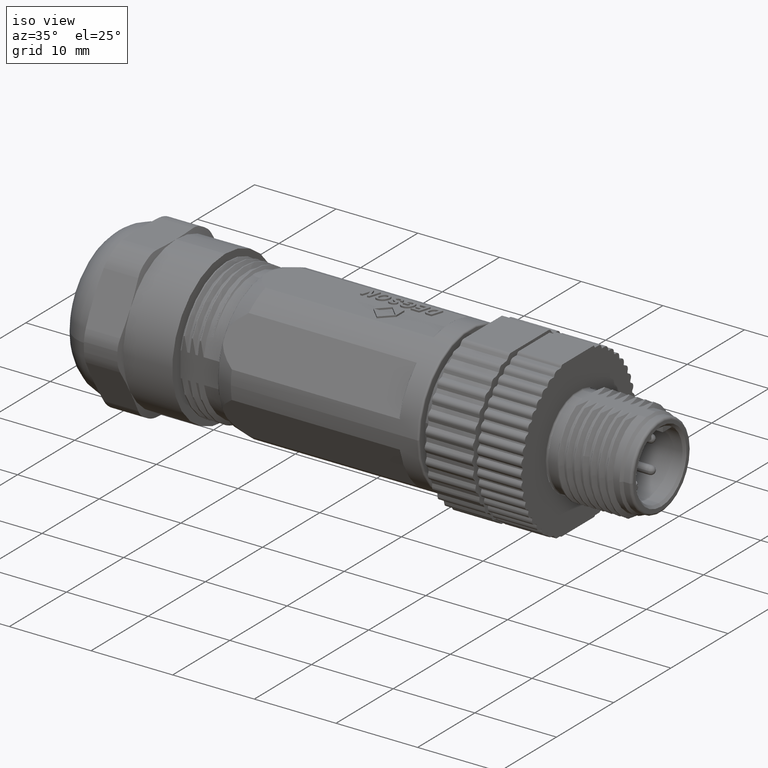
[diagram: clean part render]
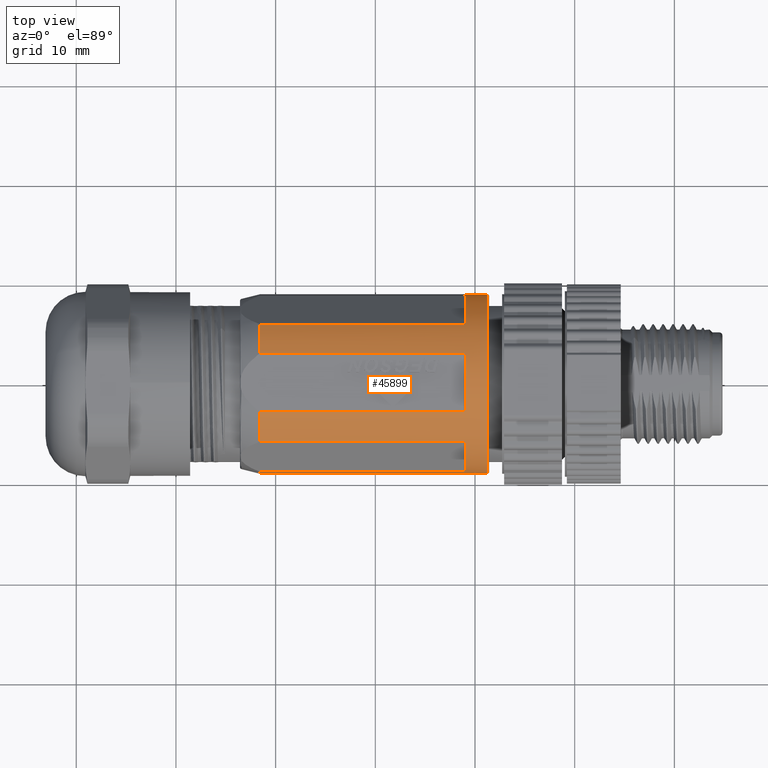
[diagram: tour spotlight — one face highlighted and labeled with its STEP entity id]
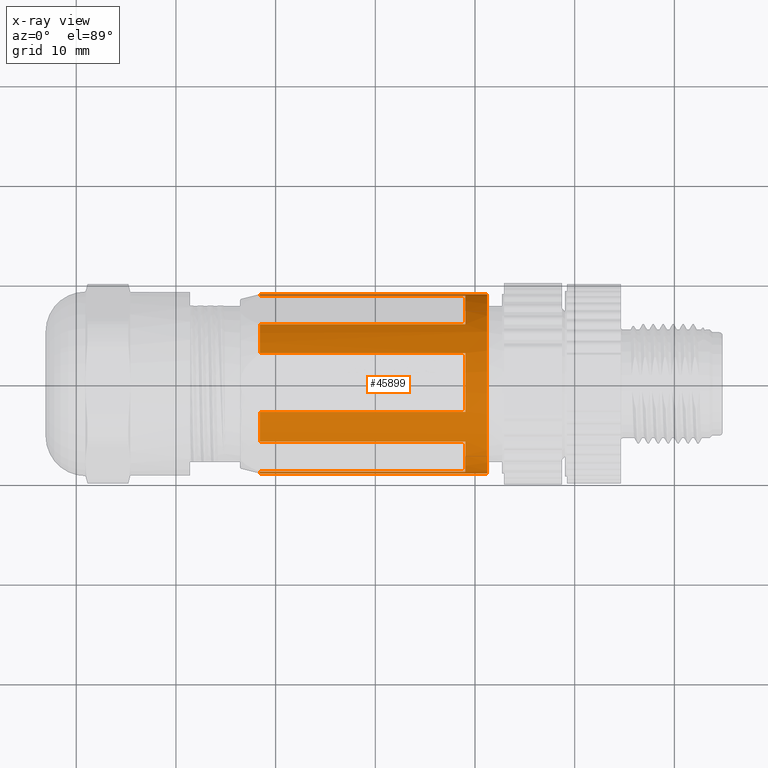
[diagram: x-ray of the same camera — body ghosted, this tour face saturated]
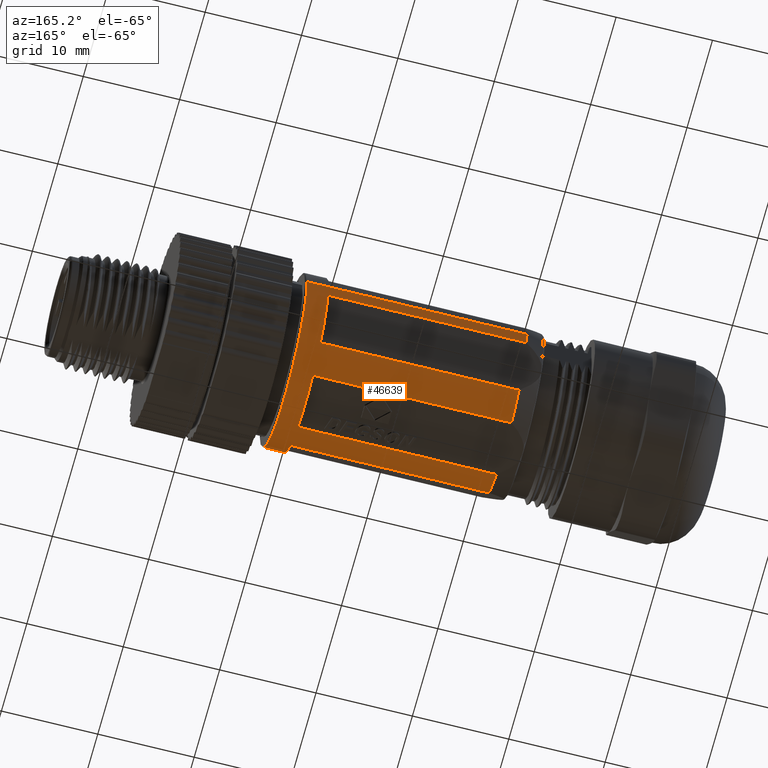
[diagram: tour spotlight — one face highlighted and labeled with its STEP entity id]
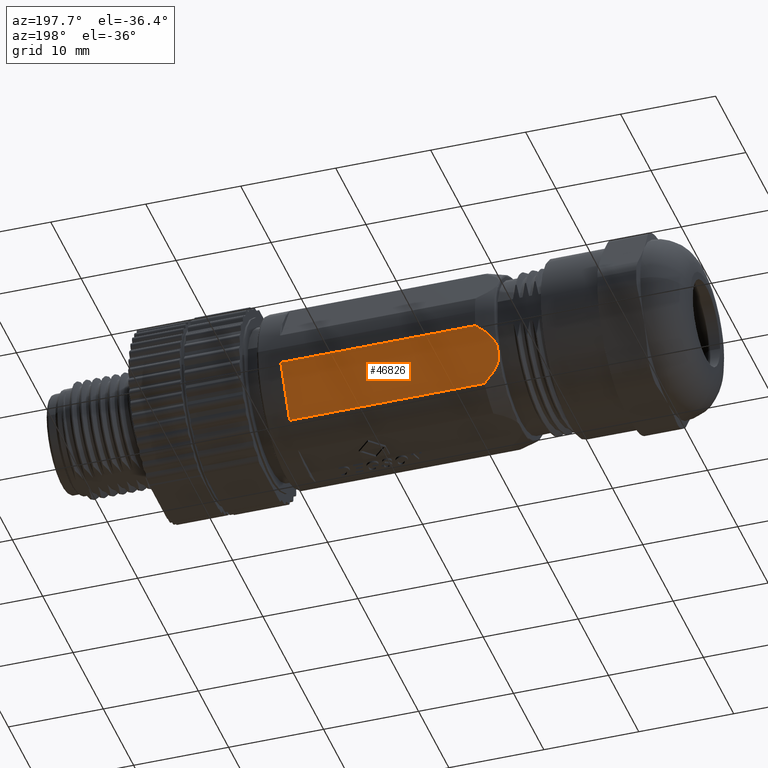
[diagram: tour spotlight — one face highlighted and labeled with its STEP entity id]
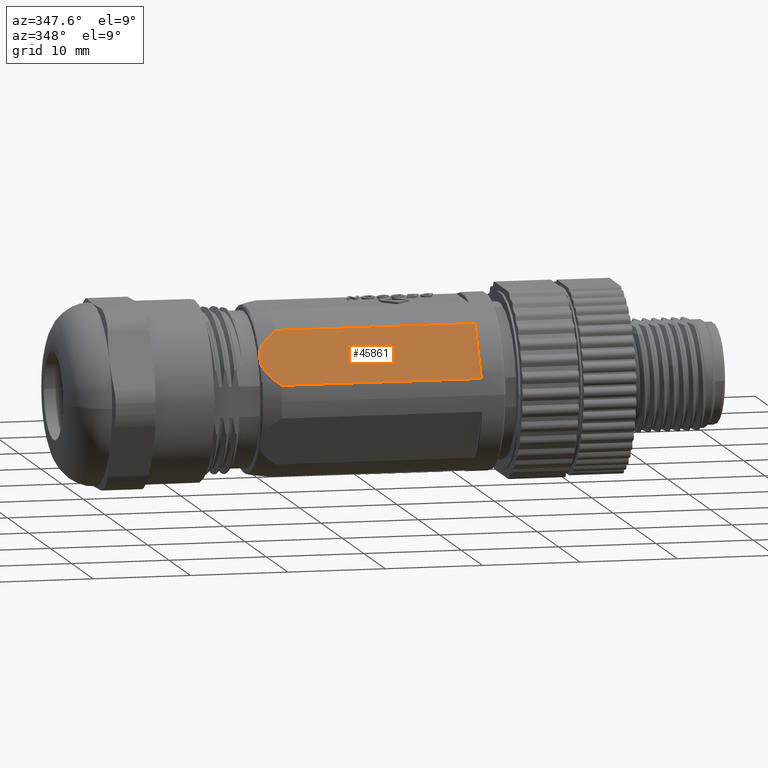
[diagram: tour spotlight — one face highlighted and labeled with its STEP entity id]
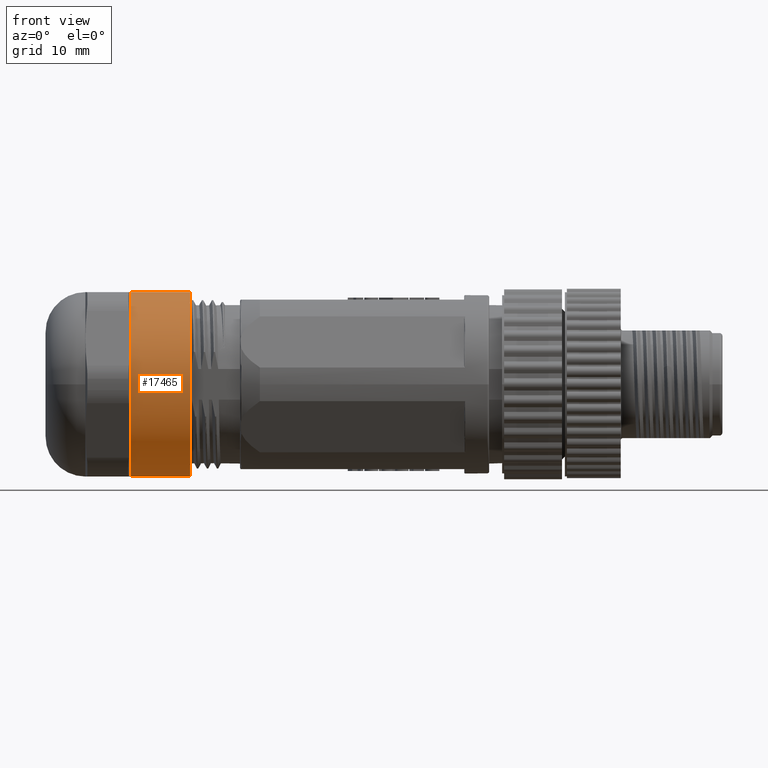
[diagram: tour spotlight — one face highlighted and labeled with its STEP entity id]
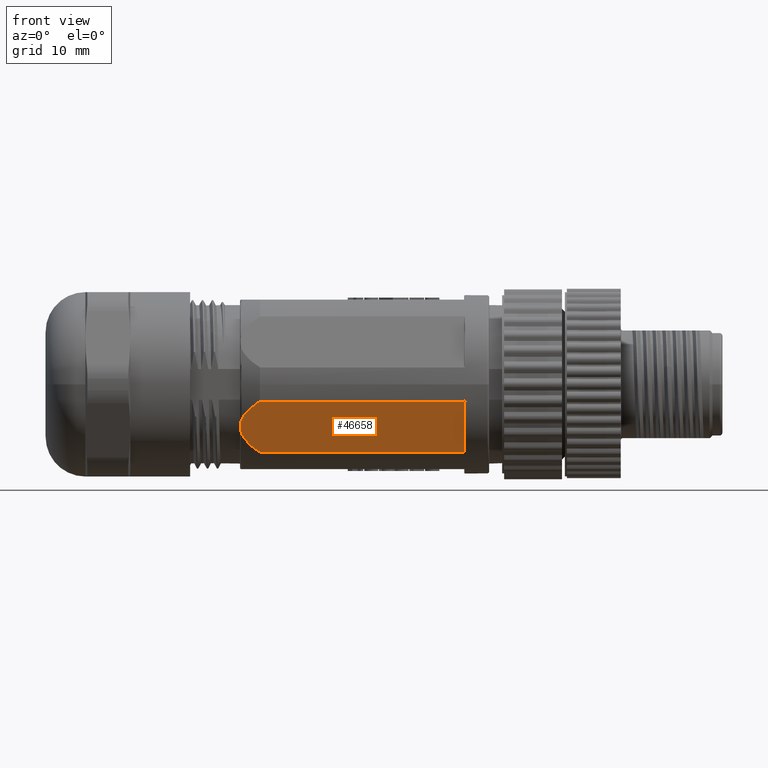
[diagram: tour spotlight — one face highlighted and labeled with its STEP entity id]
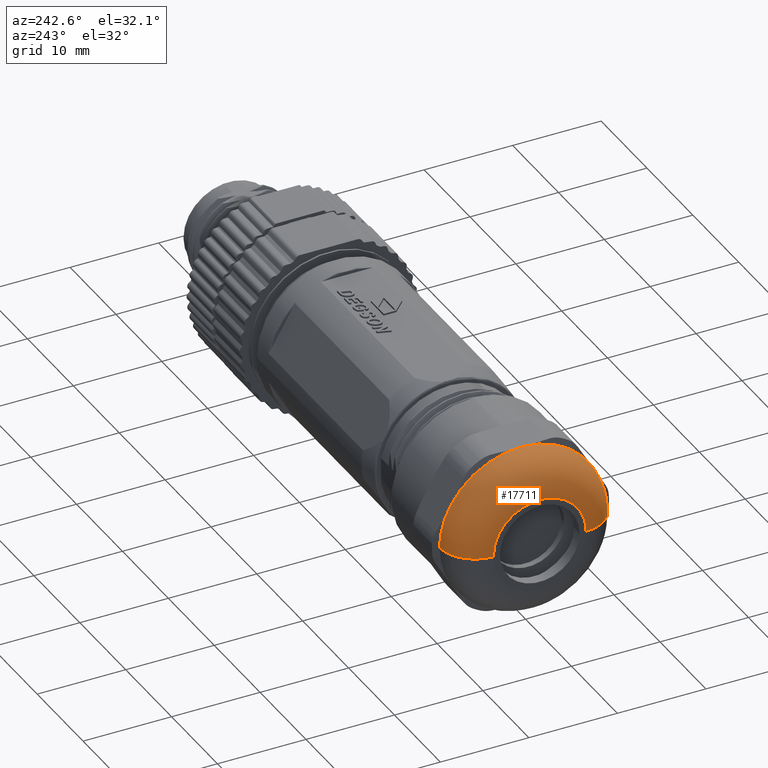
[diagram: tour spotlight — one face highlighted and labeled with its STEP entity id]
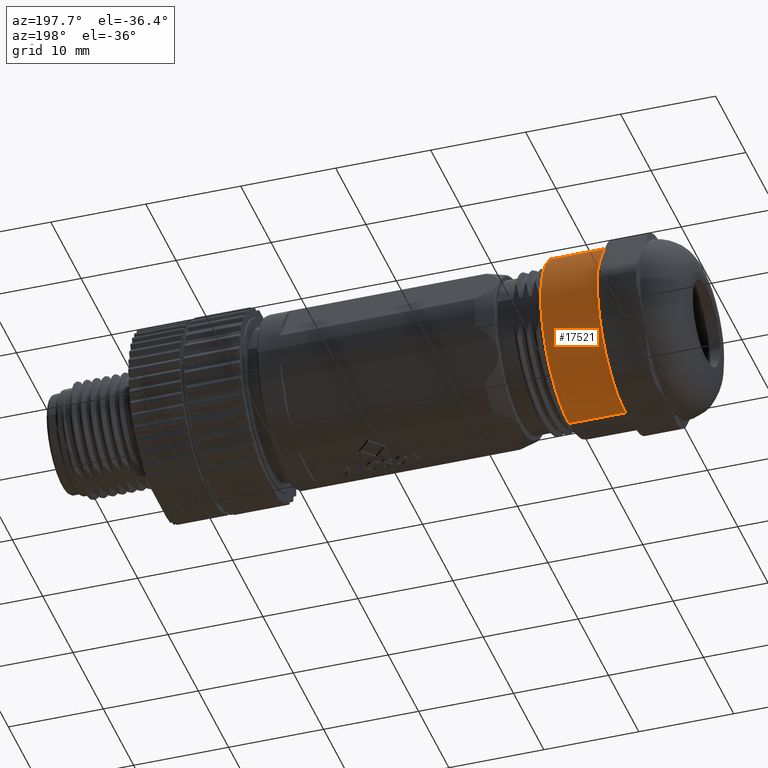
[diagram: tour spotlight — one face highlighted and labeled with its STEP entity id]
A machine part: a face-by-face anatomy tour. The part has 1504 B-rep faces; the first image is the clean iso view, then the 8 largest visible faces are spotlighted one at a time (largest first), each with its STEP entity span.

Face 1 — top view, entity #45899. An x-ray twin of the same camera follows (body ghosted, this face saturated) — the face is partly hidden behind the body. In plain terms, the highlighted cylindrical surface (partial cylindrical patch) has radius 9 mm, axis along (-1, 0, 0).
Definition (entity closure, byte-faithful):
#26718=DIRECTION('',(-1.E0,0.E0,0.E0));
#26719=VECTOR('',#26718,2.06E1);
#26720=CARTESIAN_POINT('',(-9.784312585090E-1,-8.840235877943E0,
1.688262308510E0));
#26721=LINE('',#26720,#26719);
#26722=DIRECTION('',(1.E0,0.E0,0.E0));
#26723=VECTOR('',#26722,2.06E1);
#26724=CARTESIAN_POINT('',(-2.157843125851E1,-5.882195986393E0,
6.811737691490E0));
#26725=LINE('',#26724,#26723);
#26726=CARTESIAN_POINT('',(1.221568741490E0,0.E0,0.E0));
#26727=DIRECTION('',(1.E0,0.E0,0.E0));
#26728=DIRECTION('',(0.E0,1.E0,0.E0));
#26729=AXIS2_PLACEMENT_3D('',#26726,#26727,#26728);
#26731=DIRECTION('',(-1.E0,0.E0,0.E0));
#26732=VECTOR('',#26731,2.06E1);
#26733=CARTESIAN_POINT('',(-9.784312585090E-1,-2.958039891550E0,8.5E0));
#26734=LINE('',#26733,#26732);
#26735=DIRECTION('',(1.E0,0.E0,0.E0));
#26736=VECTOR('',#26735,2.06E1);
#26737=CARTESIAN_POINT('',(-2.157843125851E1,2.958039891550E0,8.5E0));
#26738=LINE('',#26737,#26736);
#27939=CARTESIAN_POINT('',(-2.157843125851E1,0.E0,1.873709602695E-14));
#27940=DIRECTION('',(-1.E0,0.E0,0.E0));
#27941=DIRECTION('',(0.E0,3.286710990611E-1,9.444444444444E-1));
#27942=AXIS2_PLACEMENT_3D('',#27939,#27940,#27941);
#27967=CARTESIAN_POINT('',(-2.157843125851E1,0.E0,1.873709602695E-14));
#27968=DIRECTION('',(-1.E0,0.E0,0.E0));
#27969=DIRECTION('',(0.E0,-6.535773318214E-1,7.568597434989E-1));
#27970=AXIS2_PLACEMENT_3D('',#27967,#27968,#27969);
#27995=CARTESIAN_POINT('',(-2.157843125851E1,0.E0,1.873709602695E-14));
#27996=DIRECTION('',(-1.E0,0.E0,0.E0));
#27997=DIRECTION('',(0.E0,-1.E0,0.E0));
#27998=AXIS2_PLACEMENT_3D('',#27995,#27996,#27997);
#28028=DIRECTION('',(1.E0,0.E0,6.471487366646E-13));
#28029=VECTOR('',#28028,2.28E1);
#28030=CARTESIAN_POINT('',(-2.157843125851E1,-9.E0,0.E0));
#28031=LINE('',#28030,#28029);
#28037=DIRECTION('',(-1.E0,0.E0,6.471592554374E-13));
#28038=VECTOR('',#28037,2.28E1);
#28039=CARTESIAN_POINT('',(1.221568741490E0,9.E0,-1.475394514483E-11));
#28040=LINE('',#28039,#28038);
#28115=CARTESIAN_POINT('',(-9.784312585090E-1,0.E0,0.E0));
#28116=DIRECTION('',(1.E0,0.E0,0.E0));
#28117=DIRECTION('',(0.E0,-6.535773318214E-1,7.568597434989E-1));
#28118=AXIS2_PLACEMENT_3D('',#28115,#28116,#28117);
#28120=CARTESIAN_POINT('',(-9.784312585090E-1,-8.840235877943E0,
1.688262308510E0));
#28155=CARTESIAN_POINT('',(-9.784312585090E-1,-5.882195986393E0,
6.811737691490E0));
#28157=CARTESIAN_POINT('',(-9.784312585090E-1,0.E0,0.E0));
#28158=DIRECTION('',(1.E0,0.E0,0.E0));
#28159=DIRECTION('',(0.E0,3.286710990611E-1,9.444444444444E-1));
#28160=AXIS2_PLACEMENT_3D('',#28157,#28158,#28159);
#28162=CARTESIAN_POINT('',(-9.784312585090E-1,-2.958039891550E0,8.5E0));
#28197=CARTESIAN_POINT('',(-9.784312585090E-1,2.958039891550E0,8.5E0));
#28199=CARTESIAN_POINT('',(-9.784312585090E-1,0.E0,0.E0));
#28200=DIRECTION('',(1.E0,0.E0,0.E0));
#28201=DIRECTION('',(0.E0,9.822484308825E-1,1.875847009456E-1));
#28202=AXIS2_PLACEMENT_3D('',#28199,#28200,#28201);
#28204=CARTESIAN_POINT('',(-9.784312585090E-1,5.882195986393E0,
6.811737691490E0));
#28239=CARTESIAN_POINT('',(-9.784312585090E-1,8.840235877943E0,
1.688262308510E0));
#28241=DIRECTION('',(-1.E0,0.E0,0.E0));
#28242=VECTOR('',#28241,2.06E1);
#28243=CARTESIAN_POINT('',(-9.784312585090E-1,5.882195986393E0,
6.811737691490E0));
#28244=LINE('',#28243,#28242);
#28245=DIRECTION('',(1.E0,0.E0,0.E0));
#28246=VECTOR('',#28245,2.06E1);
#28247=CARTESIAN_POINT('',(-2.157843125851E1,8.840235877943E0,
1.688262308510E0));
#28248=LINE('',#28247,#28246);
#28254=CARTESIAN_POINT('',(-2.157843125851E1,0.E0,0.E0));
#28255=DIRECTION('',(-1.E0,0.E0,0.E0));
#28256=DIRECTION('',(0.E0,9.822484308825E-1,1.875847009456E-1));
#28257=AXIS2_PLACEMENT_3D('',#28254,#28255,#28256);
#39781=VERTEX_POINT('',#28155);
#39782=VERTEX_POINT('',#28120);
#39783=VERTEX_POINT('',#28197);
#39784=VERTEX_POINT('',#28162);
#39785=VERTEX_POINT('',#28239);
#39786=VERTEX_POINT('',#28204);
#39797=CARTESIAN_POINT('',(1.221568741490E0,-9.E0,0.E0));
#39798=CARTESIAN_POINT('',(1.221568741490E0,9.E0,0.E0));
#39799=VERTEX_POINT('',#39797);
#39800=VERTEX_POINT('',#39798);
#40205=CARTESIAN_POINT('',(-2.157843125851E1,9.E0,0.E0));
#40207=VERTEX_POINT('',#40205);
#40209=CARTESIAN_POINT('',(-2.157843125851E1,8.840235877943E0,
1.688262308510E0));
#40210=VERTEX_POINT('',#40209);
#40211=CARTESIAN_POINT('',(-2.157843125851E1,2.958039891550E0,8.5E0));
#40212=CARTESIAN_POINT('',(-2.157843125851E1,5.882195986393E0,
6.811737691490E0));
#40213=VERTEX_POINT('',#40211);
#40214=VERTEX_POINT('',#40212);
#40216=CARTESIAN_POINT('',(-2.157843125851E1,-9.E0,0.E0));
#40218=VERTEX_POINT('',#40216);
#40219=CARTESIAN_POINT('',(-2.157843125851E1,-5.882195986393E0,
6.811737691490E0));
#40220=CARTESIAN_POINT('',(-2.157843125851E1,-2.958039891550E0,8.5E0));
#40221=VERTEX_POINT('',#40219);
#40222=VERTEX_POINT('',#40220);
#40223=CARTESIAN_POINT('',(-2.157843125851E1,-8.840235877943E0,
1.688262308510E0));
#40224=VERTEX_POINT('',#40223);
#45862=CARTESIAN_POINT('',(-1.357843125851E1,0.E0,0.E0));
#45863=DIRECTION('',(-1.E0,0.E0,0.E0));
#45864=DIRECTION('',(0.E0,-1.E0,0.E0));
#45865=AXIS2_PLACEMENT_3D('',#45862,#45863,#45864);
#45866=CYLINDRICAL_SURFACE('',#45865,9.E0);
#45868=ORIENTED_EDGE('',*,*,#45867,.F.);
#45870=ORIENTED_EDGE('',*,*,#45869,.T.);
#45872=ORIENTED_EDGE('',*,*,#45871,.F.);
#45874=ORIENTED_EDGE('',*,*,#45873,.F.);
#45876=ORIENTED_EDGE('',*,*,#45875,.F.);
#45878=ORIENTED_EDGE('',*,*,#45877,.T.);
#45880=ORIENTED_EDGE('',*,*,#45879,.F.);
#45882=ORIENTED_EDGE('',*,*,#45881,.T.);
#45884=ORIENTED_EDGE('',*,*,#45883,.F.);
#45886=ORIENTED_EDGE('',*,*,#45885,.T.);
#45887=ORIENTED_EDGE('',*,*,#45844,.F.);
#45889=ORIENTED_EDGE('',*,*,#45888,.F.);
#45890=ORIENTED_EDGE('',*,*,#45851,.F.);
#45892=ORIENTED_EDGE('',*,*,#45891,.T.);
#45894=ORIENTED_EDGE('',*,*,#45893,.F.);
#45896=ORIENTED_EDGE('',*,*,#45895,.F.);
#45897=EDGE_LOOP('',(#45868,#45870,#45872,#45874,#45876,#45878,#45880,#45882,
#45884,#45886,#45887,#45889,#45890,#45892,#45894,#45896));
#45898=FACE_OUTER_BOUND('',#45897,.F.);
#45899=ADVANCED_FACE('',(#45898),#45866,.T.);
#26730=CIRCLE('',#26729,9.E0);
#27943=CIRCLE('',#27942,9.E0);
#27971=CIRCLE('',#27970,9.E0);
#27999=CIRCLE('',#27998,9.E0);
#28119=CIRCLE('',#28118,9.E0);
#28161=CIRCLE('',#28160,9.E0);
#28203=CIRCLE('',#28202,9.E0);
#28258=CIRCLE('',#28257,9.E0);
#45844=EDGE_CURVE('',#39782,#40224,#26721,.T.);
#45851=EDGE_CURVE('',#40221,#39781,#26725,.T.);
#45867=EDGE_CURVE('',#40213,#39783,#26738,.T.);
#45869=EDGE_CURVE('',#40213,#40214,#27943,.T.);
#45871=EDGE_CURVE('',#39786,#40214,#28244,.T.);
#45873=EDGE_CURVE('',#39785,#39786,#28203,.T.);
#45875=EDGE_CURVE('',#40210,#39785,#28248,.T.);
#45877=EDGE_CURVE('',#40210,#40207,#28258,.T.);
#45879=EDGE_CURVE('',#39800,#40207,#28040,.T.);
#45881=EDGE_CURVE('',#39800,#39799,#26730,.T.);
#45883=EDGE_CURVE('',#40218,#39799,#28031,.T.);
#45885=EDGE_CURVE('',#40218,#40224,#27999,.T.);
#45888=EDGE_CURVE('',#39781,#39782,#28119,.T.);
#45891=EDGE_CURVE('',#40221,#40222,#27971,.T.);
#45893=EDGE_CURVE('',#39784,#40222,#26734,.T.);
#45895=EDGE_CURVE('',#39783,#39784,#28161,.T.);

Face 2 — auxiliary view, entity #46639. In plain terms, the highlighted cylindrical surface (partial cylindrical patch) has radius 9 mm, axis along (-1, 0, 0).
Definition (entity closure, byte-faithful):
#27883=CARTESIAN_POINT('',(-2.157843125851E1,0.E0,1.873709602695E-14));
#27884=DIRECTION('',(-1.E0,0.E0,0.E0));
#27885=DIRECTION('',(0.E0,-3.286710990611E-1,-9.444444444444E-1));
#27886=AXIS2_PLACEMENT_3D('',#27883,#27884,#27885);
#27911=CARTESIAN_POINT('',(-2.157843125851E1,0.E0,1.873709602695E-14));
#27912=DIRECTION('',(-1.E0,0.E0,0.E0));
#27913=DIRECTION('',(0.E0,6.535773318214E-1,-7.568597434989E-1));
#27914=AXIS2_PLACEMENT_3D('',#27911,#27912,#27913);
#28000=CARTESIAN_POINT('',(-2.157843125851E1,0.E0,1.873709602695E-14));
#28001=DIRECTION('',(-1.E0,0.E0,0.E0));
#28002=DIRECTION('',(0.E0,-9.822484308825E-1,-1.875847009456E-1));
#28003=AXIS2_PLACEMENT_3D('',#28000,#28001,#28002);
#28028=DIRECTION('',(1.E0,0.E0,6.471487366646E-13));
#28029=VECTOR('',#28028,2.28E1);
#28030=CARTESIAN_POINT('',(-2.157843125851E1,-9.E0,0.E0));
#28031=LINE('',#28030,#28029);
#28032=CARTESIAN_POINT('',(1.221568741490E0,0.E0,0.E0));
#28033=DIRECTION('',(1.E0,0.E0,0.E0));
#28034=DIRECTION('',(0.E0,-1.E0,0.E0));
#28035=AXIS2_PLACEMENT_3D('',#28032,#28033,#28034);
#28037=DIRECTION('',(-1.E0,0.E0,6.471592554374E-13));
#28038=VECTOR('',#28037,2.28E1);
#28039=CARTESIAN_POINT('',(1.221568741490E0,9.E0,-1.475394514483E-11));
#28040=LINE('',#28039,#28038);
#28041=DIRECTION('',(-1.E0,0.E0,0.E0));
#28042=VECTOR('',#28041,2.06E1);
#28043=CARTESIAN_POINT('',(-9.784312585090E-1,-5.882195986393E0,
-6.811737691490E0));
#28044=LINE('',#28043,#28042);
#28045=DIRECTION('',(1.E0,0.E0,0.E0));
#28046=VECTOR('',#28045,2.06E1);
#28047=CARTESIAN_POINT('',(-2.157843125851E1,-8.840235877943E0,
-1.688262308510E0));
#28048=LINE('',#28047,#28046);
#28049=CARTESIAN_POINT('',(-9.784312585090E-1,0.E0,0.E0));
#28050=DIRECTION('',(1.E0,0.E0,0.E0));
#28051=DIRECTION('',(0.E0,-9.822484308825E-1,-1.875847009456E-1));
#28052=AXIS2_PLACEMENT_3D('',#28049,#28050,#28051);
#28054=CARTESIAN_POINT('',(-9.784312585090E-1,-5.882195986393E0,
-6.811737691490E0));
#28089=CARTESIAN_POINT('',(-9.784312585090E-1,-8.840235877943E0,
-1.688262308510E0));
#28249=CARTESIAN_POINT('',(-2.157843125851E1,0.E0,0.E0));
#28250=DIRECTION('',(-1.E0,0.E0,0.E0));
#28251=DIRECTION('',(0.E0,1.E0,0.E0));
#28252=AXIS2_PLACEMENT_3D('',#28249,#28250,#28251);
#28282=DIRECTION('',(-1.E0,0.E0,0.E0));
#28283=VECTOR('',#28282,2.06E1);
#28284=CARTESIAN_POINT('',(-9.784312585090E-1,8.840235877943E0,
-1.688262308510E0));
#28285=LINE('',#28284,#28283);
#28286=DIRECTION('',(1.E0,0.E0,0.E0));
#28287=VECTOR('',#28286,2.06E1);
#28288=CARTESIAN_POINT('',(-2.157843125851E1,5.882195986393E0,
-6.811737691490E0));
#28289=LINE('',#28288,#28287);
#28290=CARTESIAN_POINT('',(-9.784312585090E-1,0.E0,0.E0));
#28291=DIRECTION('',(1.E0,0.E0,0.E0));
#28292=DIRECTION('',(0.E0,6.535773318214E-1,-7.568597434989E-1));
#28293=AXIS2_PLACEMENT_3D('',#28290,#28291,#28292);
#28295=CARTESIAN_POINT('',(-9.784312585090E-1,8.840235877943E0,
-1.688262308510E0));
#28330=CARTESIAN_POINT('',(-9.784312585090E-1,5.882195986393E0,
-6.811737691490E0));
#28332=CARTESIAN_POINT('',(-9.784312585090E-1,0.E0,0.E0));
#28333=DIRECTION('',(1.E0,0.E0,0.E0));
#28334=DIRECTION('',(0.E0,-3.286710990611E-1,-9.444444444444E-1));
#28335=AXIS2_PLACEMENT_3D('',#28332,#28333,#28334);
#28337=CARTESIAN_POINT('',(-9.784312585090E-1,2.958039891550E0,-8.5E0));
#28372=CARTESIAN_POINT('',(-9.784312585090E-1,-2.958039891550E0,-8.5E0));
#28374=DIRECTION('',(-1.E0,0.E0,0.E0));
#28375=VECTOR('',#28374,2.06E1);
#28376=CARTESIAN_POINT('',(-9.784312585090E-1,2.958039891550E0,-8.5E0));
#28377=LINE('',#28376,#28375);
#28378=DIRECTION('',(1.E0,0.E0,0.E0));
#28379=VECTOR('',#28378,2.06E1);
#28380=CARTESIAN_POINT('',(-2.157843125851E1,-2.958039891550E0,-8.5E0));
#28381=LINE('',#28380,#28379);
#39787=VERTEX_POINT('',#28330);
#39788=VERTEX_POINT('',#28295);
#39789=VERTEX_POINT('',#28372);
#39790=VERTEX_POINT('',#28337);
#39791=VERTEX_POINT('',#28089);
#39792=VERTEX_POINT('',#28054);
#39797=CARTESIAN_POINT('',(1.221568741490E0,-9.E0,0.E0));
#39798=CARTESIAN_POINT('',(1.221568741490E0,9.E0,0.E0));
#39799=VERTEX_POINT('',#39797);
#39800=VERTEX_POINT('',#39798);
#40205=CARTESIAN_POINT('',(-2.157843125851E1,9.E0,0.E0));
#40206=CARTESIAN_POINT('',(-2.157843125851E1,8.840235877943E0,
-1.688262308510E0));
#40207=VERTEX_POINT('',#40205);
#40208=VERTEX_POINT('',#40206);
#40215=CARTESIAN_POINT('',(-2.157843125851E1,-8.840235877943E0,
-1.688262308510E0));
#40216=CARTESIAN_POINT('',(-2.157843125851E1,-9.E0,0.E0));
#40217=VERTEX_POINT('',#40215);
#40218=VERTEX_POINT('',#40216);
#40225=CARTESIAN_POINT('',(-2.157843125851E1,-2.958039891550E0,-8.5E0));
#40226=CARTESIAN_POINT('',(-2.157843125851E1,-5.882195986393E0,
-6.811737691490E0));
#40227=VERTEX_POINT('',#40225);
#40228=VERTEX_POINT('',#40226);
#40229=CARTESIAN_POINT('',(-2.157843125851E1,5.882195986393E0,
-6.811737691490E0));
#40230=CARTESIAN_POINT('',(-2.157843125851E1,2.958039891550E0,-8.5E0));
#40231=VERTEX_POINT('',#40229);
#40232=VERTEX_POINT('',#40230);
#46605=CARTESIAN_POINT('',(-1.357843125851E1,0.E0,0.E0));
#46606=DIRECTION('',(-1.E0,0.E0,0.E0));
#46607=DIRECTION('',(0.E0,-1.E0,0.E0));
#46608=AXIS2_PLACEMENT_3D('',#46605,#46606,#46607);
#46609=CYLINDRICAL_SURFACE('',#46608,9.E0);
#46611=ORIENTED_EDGE('',*,*,#46610,.F.);
#46612=ORIENTED_EDGE('',*,*,#46596,.T.);
#46613=ORIENTED_EDGE('',*,*,#45883,.T.);
#46615=ORIENTED_EDGE('',*,*,#46614,.T.);
#46616=ORIENTED_EDGE('',*,*,#45879,.T.);
#46618=ORIENTED_EDGE('',*,*,#46617,.T.);
#46620=ORIENTED_EDGE('',*,*,#46619,.F.);
#46622=ORIENTED_EDGE('',*,*,#46621,.F.);
#46624=ORIENTED_EDGE('',*,*,#46623,.F.);
#46625=ORIENTED_EDGE('',*,*,#46555,.T.);
#46627=ORIENTED_EDGE('',*,*,#46626,.F.);
#46629=ORIENTED_EDGE('',*,*,#46628,.F.);
#46631=ORIENTED_EDGE('',*,*,#46630,.F.);
#46632=ORIENTED_EDGE('',*,*,#46540,.T.);
#46634=ORIENTED_EDGE('',*,*,#46633,.F.);
#46636=ORIENTED_EDGE('',*,*,#46635,.F.);
#46637=EDGE_LOOP('',(#46611,#46612,#46613,#46615,#46616,#46618,#46620,#46622,
#46624,#46625,#46627,#46629,#46631,#46632,#46634,#46636));
#46638=FACE_OUTER_BOUND('',#46637,.F.);
#46639=ADVANCED_FACE('',(#46638),#46609,.T.);
#27887=CIRCLE('',#27886,9.E0);
#27915=CIRCLE('',#27914,9.E0);
#28004=CIRCLE('',#28003,9.E0);
#28036=CIRCLE('',#28035,9.E0);
#28053=CIRCLE('',#28052,9.E0);
#28253=CIRCLE('',#28252,9.E0);
#28294=CIRCLE('',#28293,9.E0);
#28336=CIRCLE('',#28335,9.E0);
#45879=EDGE_CURVE('',#39800,#40207,#28040,.T.);
#45883=EDGE_CURVE('',#40218,#39799,#28031,.T.);
#46540=EDGE_CURVE('',#40227,#40228,#27887,.T.);
#46555=EDGE_CURVE('',#40231,#40232,#27915,.T.);
#46596=EDGE_CURVE('',#40217,#40218,#28004,.T.);
#46610=EDGE_CURVE('',#40217,#39791,#28048,.T.);
#46614=EDGE_CURVE('',#39799,#39800,#28036,.T.);
#46617=EDGE_CURVE('',#40207,#40208,#28253,.T.);
#46619=EDGE_CURVE('',#39788,#40208,#28285,.T.);
#46621=EDGE_CURVE('',#39787,#39788,#28294,.T.);
#46623=EDGE_CURVE('',#40231,#39787,#28289,.T.);
#46626=EDGE_CURVE('',#39790,#40232,#28377,.T.);
#46628=EDGE_CURVE('',#39789,#39790,#28336,.T.);
#46630=EDGE_CURVE('',#40227,#39789,#28381,.T.);
#46633=EDGE_CURVE('',#39792,#40228,#28044,.T.);
#46635=EDGE_CURVE('',#39791,#39792,#28053,.T.);

Face 3 — auxiliary view, entity #46826. In plain terms, the highlighted planar face has unit normal (0, -0.866, 0.5).
Definition (entity closure, byte-faithful):
#26599=CARTESIAN_POINT('',(-2.342693838359E1,7.762862262665E0,
-3.554328148898E0));
#26600=CARTESIAN_POINT('',(-2.342930005298E1,7.759724608914E0,
-3.559762724611E0));
#26601=CARTESIAN_POINT('',(-2.343388857970E1,7.753069659587E0,
-3.571289434978E0));
#26602=CARTESIAN_POINT('',(-2.344042019593E1,7.741984250724E0,
-3.590489926348E0));
#26603=CARTESIAN_POINT('',(-2.344666746977E1,7.729730617325E0,
-3.611713841973E0));
#26604=CARTESIAN_POINT('',(-2.345255294103E1,7.716514327634E0,
-3.634605127204E0));
#26605=CARTESIAN_POINT('',(-2.345813946797E1,7.702265727092E0,
-3.659284427281E0));
#26606=CARTESIAN_POINT('',(-2.346351184324E1,7.686742163140E0,
-3.686172028760E0));
#26607=CARTESIAN_POINT('',(-2.346866131901E1,7.669881092156E0,
-3.715376260375E0));
#26608=CARTESIAN_POINT('',(-2.347357501646E1,7.651619830284E0,
-3.747005693747E0));
#26609=CARTESIAN_POINT('',(-2.347823154796E1,7.631909825037E0,
-3.781144424251E0));
#26610=CARTESIAN_POINT('',(-2.348262155109E1,7.610629810061E0,
-3.818002491375E0));
#26611=CARTESIAN_POINT('',(-2.348673768802E1,7.587577004365E0,
-3.857931122098E0));
#26612=CARTESIAN_POINT('',(-2.349055350281E1,7.562558913081E0,
-3.901263727311E0));
#26613=CARTESIAN_POINT('',(-2.349402716486E1,7.535376904171E0,
-3.948344347795E0));
#26614=CARTESIAN_POINT('',(-2.349710052422E1,7.505865698298E0,
-3.999459255759E0));
#26615=CARTESIAN_POINT('',(-2.349970343297E1,7.473720431263E0,
-4.055136491488E0));
#26616=CARTESIAN_POINT('',(-2.350172200771E1,7.439212454879E0,
-4.114906059850E0));
#26617=CARTESIAN_POINT('',(-2.350308521327E1,7.400947999611E0,
-4.181182040498E0));
#26618=CARTESIAN_POINT('',(-2.350354023761E1,7.361132179058E0,
-4.250145064641E0));
#26619=CARTESIAN_POINT('',(-2.350311376345E1,7.324142224289E0,
-4.314213545671E0));
#26620=CARTESIAN_POINT('',(-2.350198847571E1,7.289665322865E0,
-4.373929290624E0));
#26621=CARTESIAN_POINT('',(-2.350026943321E1,7.257483796816E0,
-4.429669328806E0));
#26622=CARTESIAN_POINT('',(-2.349804888629E1,7.227501203325E0,
-4.481600704075E0));
#26623=CARTESIAN_POINT('',(-2.349539771725E1,7.199582859421E0,
-4.529956694181E0));
#26624=CARTESIAN_POINT('',(-2.349237335710E1,7.173600866920E0,
-4.574958825275E0));
#26625=CARTESIAN_POINT('',(-2.348902114400E1,7.149423558454E0,
-4.616835151928E0));
#26626=CARTESIAN_POINT('',(-2.348537611657E1,7.126920108339E0,
-4.655812270873E0));
#26627=CARTESIAN_POINT('',(-2.348146303293E1,7.105957888177E0,
-4.692119901233E0));
#26628=CARTESIAN_POINT('',(-2.347729803931E1,7.086412023577E0,
-4.725974331798E0));
#26629=CARTESIAN_POINT('',(-2.347288355909E1,7.068142317022E0,
-4.757618391790E0));
#26630=CARTESIAN_POINT('',(-2.346819559950E1,7.050968257360E0,
-4.787364735697E0));
#26631=CARTESIAN_POINT('',(-2.346322469110E1,7.034831083810E0,
-4.815315140176E0));
#26632=CARTESIAN_POINT('',(-2.345799241334E1,7.019780573794E0,
-4.841383388203E0));
#26633=CARTESIAN_POINT('',(-2.345249500271E1,7.005787597175E0,
-4.865619934657E0));
#26634=CARTESIAN_POINT('',(-2.344671408972E1,6.992811761245E0,
-4.888094741760E0));
#26635=CARTESIAN_POINT('',(-2.344060556963E1,6.980794984653E0,
-4.908908409355E0));
#26636=CARTESIAN_POINT('',(-2.343409524711E1,6.969682096606E0,
-4.928156496089E0));
#26637=CARTESIAN_POINT('',(-2.342939994244E1,6.962839965901E0,
-4.940007414059E0));
#26638=CARTESIAN_POINT('',(-2.342693838372E1,6.959569601735E0,
-4.945671850953E0));
#27916=CARTESIAN_POINT('',(-2.157843125851E1,5.882195986393E0,
-6.811737691490E0));
#27917=CARTESIAN_POINT('',(-2.177147303491E1,5.955613521792E0,
-6.684574790011E0));
#27918=CARTESIAN_POINT('',(-2.213033460722E1,6.101836083245E0,
-6.431309884362E0));
#27919=CARTESIAN_POINT('',(-2.258670314357E1,6.320077558081E0,
-6.053304561629E0));
#27920=CARTESIAN_POINT('',(-2.295886970623E1,6.536998458830E0,
-5.677586540303E0));
#27921=CARTESIAN_POINT('',(-2.324448676868E1,6.751894309896E0,
-5.305376007938E0));
#27922=CARTESIAN_POINT('',(-2.337532540988E1,6.890997920384E0,
-5.064441487015E0));
#27923=CARTESIAN_POINT('',(-2.342693838372E1,6.959569601735E0,
-4.945671850953E0));
#28103=DIRECTION('',(0.E0,5.E-1,8.660254037844E-1));
#28104=VECTOR('',#28103,5.276362383309E0);
#28105=CARTESIAN_POINT('',(-1.078431258509E0,6.042125336340E0,
-6.534731931759E0));
#28106=LINE('',#28105,#28104);
#28273=CARTESIAN_POINT('',(-2.342693838359E1,7.762862262665E0,
-3.554328148898E0));
#28274=CARTESIAN_POINT('',(-2.337533184691E1,7.831425391763E0,
-3.435573325774E0));
#28275=CARTESIAN_POINT('',(-2.324450789066E1,7.970518589052E0,
-3.194656841094E0));
#28276=CARTESIAN_POINT('',(-2.295889153085E1,8.185419925388E0,
-2.822436807941E0));
#28277=CARTESIAN_POINT('',(-2.258671132126E1,8.402350668081E0,
-2.446701739875E0));
#28278=CARTESIAN_POINT('',(-2.213032581437E1,8.620599787956E0,
-2.068683175543E0));
#28279=CARTESIAN_POINT('',(-2.177146805435E1,8.766820236745E0,
-1.815421929134E0));
#28280=CARTESIAN_POINT('',(-2.157843125851E1,8.840235877943E0,
-1.688262308510E0));
#28282=DIRECTION('',(-1.E0,0.E0,0.E0));
#28283=VECTOR('',#28282,2.06E1);
#28284=CARTESIAN_POINT('',(-9.784312585090E-1,8.840235877943E0,
-1.688262308510E0));
#28285=LINE('',#28284,#28283);
#28286=DIRECTION('',(1.E0,0.E0,0.E0));
#28287=VECTOR('',#28286,2.06E1);
#28288=CARTESIAN_POINT('',(-2.157843125851E1,5.882195986393E0,
-6.811737691490E0));
#28289=LINE('',#28288,#28287);
#28295=CARTESIAN_POINT('',(-9.784312585090E-1,8.840235877943E0,
-1.688262308510E0));
#28296=CARTESIAN_POINT('',(-9.849491805119E-1,8.840235877943E0,
-1.688262308510E0));
#28297=CARTESIAN_POINT('',(-9.970929571820E-1,8.838335746932E0,
-1.691553431961E0));
#28298=CARTESIAN_POINT('',(-1.012879015751E0,8.831533890126E0,
-1.703334593535E0));
#28299=CARTESIAN_POINT('',(-1.025904606219E0,8.822457638046E0,
-1.719055123280E0));
#28300=CARTESIAN_POINT('',(-1.037372238806E0,8.811316042982E0,
-1.738352932009E0));
#28301=CARTESIAN_POINT('',(-1.047164642363E0,8.798599565822E0,
-1.760378516544E0));
#28302=CARTESIAN_POINT('',(-1.054996025711E0,8.785571263483E0,
-1.782944198131E0));
#28303=CARTESIAN_POINT('',(-1.061756853988E0,8.771376785950E0,
-1.807529754404E0));
#28304=CARTESIAN_POINT('',(-1.067432927630E0,8.756036038768E0,
-1.834100707950E0));
#28305=CARTESIAN_POINT('',(-1.072068465569E0,8.739386798435E0,
-1.862938038114E0));
#28306=CARTESIAN_POINT('',(-1.075589446894E0,8.721319143859E0,
-1.894232133813E0));
#28307=CARTESIAN_POINT('',(-1.077867721989E0,8.701742994047E0,
-1.928139019904E0));
#28308=CARTESIAN_POINT('',(-1.078431258509E0,8.687626335605E0,
-1.952589789558E0));
#28309=CARTESIAN_POINT('',(-1.078431258509E0,8.680306527995E0,
-1.965268068241E0));
#28316=CARTESIAN_POINT('',(-1.078431258509E0,6.042125336340E0,
-6.534731931759E0));
#28317=CARTESIAN_POINT('',(-1.078431258509E0,6.034793870270E0,
-6.547430403487E0));
#28318=CARTESIAN_POINT('',(-1.077865820525E0,6.020659343628E0,
-6.571912121772E0));
#28319=CARTESIAN_POINT('',(-1.075584176674E0,6.001078089005E0,
-6.605827849654E0));
#28320=CARTESIAN_POINT('',(-1.072060290525E0,5.983010958587E0,
-6.637121037486E0));
#28321=CARTESIAN_POINT('',(-1.067421988195E0,5.966358771016E0,
-6.665963472417E0));
#28322=CARTESIAN_POINT('',(-1.061728950370E0,5.950989882277E0,
-6.692583168568E0));
#28323=CARTESIAN_POINT('',(-1.054952182447E0,5.936763258773E0,
-6.717224403297E0));
#28324=CARTESIAN_POINT('',(-1.046988699521E0,5.923581270534E0,
-6.740056276671E0));
#28325=CARTESIAN_POINT('',(-1.037429048657E0,5.911207828171E0,
-6.761487707509E0));
#28326=CARTESIAN_POINT('',(-1.026248896366E0,5.900301358526E0,
-6.780378267065E0));
#28327=CARTESIAN_POINT('',(-1.013626043564E0,5.891303240062E0,
-6.795963465417E0));
#28328=CARTESIAN_POINT('',(-9.972353414798E-1,5.884087537551E0,
-6.808461428778E0));
#28329=CARTESIAN_POINT('',(-9.849976417995E-1,5.882195986393E0,
-6.811737691490E0));
#28330=CARTESIAN_POINT('',(-9.784312585090E-1,5.882195986393E0,
-6.811737691490E0));
#39769=CARTESIAN_POINT('',(-1.078431258509E0,6.042125336340E0,
-6.534731931759E0));
#39770=CARTESIAN_POINT('',(-1.078431258509E0,8.680306527995E0,
-1.965268068241E0));
#39771=VERTEX_POINT('',#39769);
#39772=VERTEX_POINT('',#39770);
#39787=VERTEX_POINT('',#28330);
#39788=VERTEX_POINT('',#28295);
#40153=CARTESIAN_POINT('',(-2.342693838352E1,7.762862262730E0,
-3.554328148792E0));
#40155=VERTEX_POINT('',#40153);
#40174=CARTESIAN_POINT('',(-2.342693838352E1,6.959569601605E0,
-4.945671851208E0));
#40176=VERTEX_POINT('',#40174);
#40206=CARTESIAN_POINT('',(-2.157843125851E1,8.840235877943E0,
-1.688262308510E0));
#40208=VERTEX_POINT('',#40206);
#40229=CARTESIAN_POINT('',(-2.157843125851E1,5.882195986393E0,
-6.811737691490E0));
#40231=VERTEX_POINT('',#40229);
#46809=CARTESIAN_POINT('',(-1.357843125851E1,5.882195986393E0,
-6.811737691490E0));
#46810=DIRECTION('',(0.E0,-8.660254037844E-1,5.E-1));
#46811=DIRECTION('',(0.E0,5.E-1,8.660254037844E-1));
#46812=AXIS2_PLACEMENT_3D('',#46809,#46810,#46811);
#46813=PLANE('',#46812);
#46814=ORIENTED_EDGE('',*,*,#46619,.T.);
#46815=ORIENTED_EDGE('',*,*,#46804,.F.);
#46816=ORIENTED_EDGE('',*,*,#45823,.T.);
#46817=ORIENTED_EDGE('',*,*,#46557,.F.);
#46818=ORIENTED_EDGE('',*,*,#46623,.T.);
#46820=ORIENTED_EDGE('',*,*,#46819,.F.);
#46821=ORIENTED_EDGE('',*,*,#46713,.T.);
#46823=ORIENTED_EDGE('',*,*,#46822,.F.);
#46824=EDGE_LOOP('',(#46814,#46815,#46816,#46817,#46818,#46820,#46821,#46823));
#46825=FACE_OUTER_BOUND('',#46824,.F.);
#46826=ADVANCED_FACE('',(#46825),#46813,.F.);
#26639=B_SPLINE_CURVE_WITH_KNOTS('',3,(#26599,#26600,#26601,#26602,#26603,
#26604,#26605,#26606,#26607,#26608,#26609,#26610,#26611,#26612,#26613,#26614,
#26615,#26616,#26617,#26618,#26619,#26620,#26621,#26622,#26623,#26624,#26625,
#26626,#26627,#26628,#26629,#26630,#26631,#26632,#26633,#26634,#26635,#26636,
#26637,#26638),.UNSPECIFIED.,.F.,.F.,(4,1,1,1,1,1,1,1,1,1,1,1,1,1,1,1,1,1,1,1,1,
1,1,1,1,1,1,1,1,1,1,1,1,1,1,1,1,4),(0.E0,2.702702702703E-2,5.405405405405E-2,
8.108108108108E-2,1.081081081081E-1,1.351351351351E-1,1.621621621622E-1,
1.891891891892E-1,2.162162162162E-1,2.432432432432E-1,2.702702702703E-1,
2.972972972973E-1,3.243243243243E-1,3.513513513514E-1,3.783783783784E-1,
4.054054054054E-1,4.324324324324E-1,4.594594594595E-1,4.864864864865E-1,
5.135135135135E-1,5.405405405405E-1,5.675675675676E-1,5.945945945946E-1,
6.216216216216E-1,6.486486486486E-1,6.756756756757E-1,7.027027027027E-1,
7.297297297297E-1,7.567567567568E-1,7.837837837838E-1,8.108108108108E-1,
8.378378378378E-1,8.648648648649E-1,8.918918918919E-1,9.189189189189E-1,
9.459459459459E-1,9.729729729730E-1,1.E0),.UNSPECIFIED.);
#27924=B_SPLINE_CURVE_WITH_KNOTS('',3,(#27916,#27917,#27918,#27919,#27920,
#27921,#27922,#27923),.UNSPECIFIED.,.F.,.F.,(4,1,1,1,1,4),(0.E0,2.E-1,4.E-1,
6.E-1,8.E-1,1.E0),.UNSPECIFIED.);
#28281=B_SPLINE_CURVE_WITH_KNOTS('',3,(#28273,#28274,#28275,#28276,#28277,
#28278,#28279,#28280),.UNSPECIFIED.,.F.,.F.,(4,1,1,1,1,4),(0.E0,2.E-1,4.E-1,
6.E-1,8.E-1,1.E0),.UNSPECIFIED.);
#28310=B_SPLINE_CURVE_WITH_KNOTS('',3,(#28295,#28296,#28297,#28298,#28299,
#28300,#28301,#28302,#28303,#28304,#28305,#28306,#28307,#28308,#28309),
.UNSPECIFIED.,.F.,.F.,(4,1,1,1,1,1,1,1,1,1,1,1,4),(0.E0,8.333333333333E-2,
1.666666666667E-1,2.5E-1,3.333333333333E-1,4.166666666667E-1,5.E-1,
5.833333333333E-1,6.666666666667E-1,7.5E-1,8.333333333333E-1,9.166666666667E-1,
1.E0),.UNSPECIFIED.);
#28331=B_SPLINE_CURVE_WITH_KNOTS('',3,(#28316,#28317,#28318,#28319,#28320,
#28321,#28322,#28323,#28324,#28325,#28326,#28327,#28328,#28329,#28330),
.UNSPECIFIED.,.F.,.F.,(4,1,1,1,1,1,1,1,1,1,1,1,4),(0.E0,8.333333333333E-2,
1.666666666667E-1,2.5E-1,3.333333333333E-1,4.166666666667E-1,5.E-1,
5.833333333333E-1,6.666666666667E-1,7.5E-1,8.333333333333E-1,9.166666666667E-1,
1.E0),.UNSPECIFIED.);
#45823=EDGE_CURVE('',#40155,#40176,#26639,.T.);
#46557=EDGE_CURVE('',#40231,#40176,#27924,.T.);
#46619=EDGE_CURVE('',#39788,#40208,#28285,.T.);
#46623=EDGE_CURVE('',#40231,#39787,#28289,.T.);
#46713=EDGE_CURVE('',#39771,#39772,#28106,.T.);
#46804=EDGE_CURVE('',#40155,#40208,#28281,.T.);
#46819=EDGE_CURVE('',#39771,#39787,#28331,.T.);
#46822=EDGE_CURVE('',#39788,#39772,#28310,.T.);

Face 4 — auxiliary view, entity #45861. In plain terms, the highlighted planar face has unit normal (0, 0.866, -0.5).
Definition (entity closure, byte-faithful):
#26476=CARTESIAN_POINT('',(-2.342693838362E1,-7.762862262655E0,
3.554328148909E0));
#26477=CARTESIAN_POINT('',(-2.342935038440E1,-7.759657739905E0,
3.559878545125E0));
#26478=CARTESIAN_POINT('',(-2.343393931478E1,-7.752981598997E0,
3.571441960397E0));
#26479=CARTESIAN_POINT('',(-2.344028134552E1,-7.742213326969E0,
3.590093154650E0));
#26480=CARTESIAN_POINT('',(-2.344620533033E1,-7.730664555580E0,
3.610096213465E0));
#26481=CARTESIAN_POINT('',(-2.345178658560E1,-7.718301942076E0,
3.631508888166E0));
#26482=CARTESIAN_POINT('',(-2.345707453677E1,-7.705082900391E0,
3.654404939992E0));
#26483=CARTESIAN_POINT('',(-2.346209802254E1,-7.690967406879E0,
3.678853691929E0));
#26484=CARTESIAN_POINT('',(-2.346687104231E1,-7.675922879072E0,
3.704911578466E0));
#26485=CARTESIAN_POINT('',(-2.347139557164E1,-7.659933658708E0,
3.732605720510E0));
#26486=CARTESIAN_POINT('',(-2.347566716873E1,-7.642992377254E0,
3.761948880734E0));
#26487=CARTESIAN_POINT('',(-2.347966565897E1,-7.625163580883E0,
3.792829261887E0));
#26488=CARTESIAN_POINT('',(-2.348341843804E1,-7.606292830129E0,
3.825514360970E0));
#26489=CARTESIAN_POINT('',(-2.348696214008E1,-7.586060844475E0,
3.860557188060E0));
#26490=CARTESIAN_POINT('',(-2.349030093588E1,-7.564178414014E0,
3.898458669412E0));
#26491=CARTESIAN_POINT('',(-2.349341678470E1,-7.540356759873E0,
3.939718984705E0));
#26492=CARTESIAN_POINT('',(-2.349627001998E1,-7.514306157182E0,
3.984839952133E0));
#26493=CARTESIAN_POINT('',(-2.349879860822E1,-7.485735195592E0,
4.034326309228E0));
#26494=CARTESIAN_POINT('',(-2.350091613563E1,-7.454361263864E0,
4.088667553014E0));
#26495=CARTESIAN_POINT('',(-2.350250701108E1,-7.419875444927E0,
4.148398743555E0));
#26496=CARTESIAN_POINT('',(-2.350342031105E1,-7.382082329803E0,
4.213858339126E0));
#26497=CARTESIAN_POINT('',(-2.350345189471E1,-7.340259394282E0,
4.286297788368E0));
#26498=CARTESIAN_POINT('',(-2.350232336314E1,-7.295751157259E0,
4.363388316247E0));
#26499=CARTESIAN_POINT('',(-2.350007438265E1,-7.253365643689E0,
4.436802179257E0));
#26500=CARTESIAN_POINT('',(-2.349707382732E1,-7.215898763618E0,
4.501696719140E0));
#26501=CARTESIAN_POINT('',(-2.349355078364E1,-7.182769884226E0,
4.559077621445E0));
#26502=CARTESIAN_POINT('',(-2.348960988013E1,-7.153139225805E0,
4.610399427292E0));
#26503=CARTESIAN_POINT('',(-2.348535987871E1,-7.126657392631E0,
4.656267307827E0));
#26504=CARTESIAN_POINT('',(-2.348087995632E1,-7.102952166684E0,
4.697325963573E0));
#26505=CARTESIAN_POINT('',(-2.347618466133E1,-7.081499931217E0,
4.734482325336E0));
#26506=CARTESIAN_POINT('',(-2.347122337001E1,-7.061754461385E0,
4.768682482305E0));
#26507=CARTESIAN_POINT('',(-2.346607670927E1,-7.043816113843E0,
4.799752611651E0));
#26508=CARTESIAN_POINT('',(-2.346082162081E1,-7.027684088244E0,
4.827694099618E0));
#26509=CARTESIAN_POINT('',(-2.345550045420E1,-7.013237532446E0,
4.852716268255E0));
#26510=CARTESIAN_POINT('',(-2.345012609522E1,-7.000301568413E0,
4.875122015204E0));
#26511=CARTESIAN_POINT('',(-2.344467773284E1,-6.988669887334E0,
4.895268677812E0));
#26512=CARTESIAN_POINT('',(-2.343909224900E1,-6.978121557076E0,
4.913538921752E0));
#26513=CARTESIAN_POINT('',(-2.343327963634E1,-6.968466849404E0,
4.930261365975E0));
#26514=CARTESIAN_POINT('',(-2.342910834202E1,-6.962452553143E0,
4.940678432667E0));
#26515=CARTESIAN_POINT('',(-2.342693838353E1,-6.959569601617E0,
4.945671851185E0));
#26718=DIRECTION('',(-1.E0,0.E0,0.E0));
#26719=VECTOR('',#26718,2.06E1);
#26720=CARTESIAN_POINT('',(-9.784312585090E-1,-8.840235877943E0,
1.688262308510E0));
#26721=LINE('',#26720,#26719);
#26722=DIRECTION('',(1.E0,0.E0,0.E0));
#26723=VECTOR('',#26722,2.06E1);
#26724=CARTESIAN_POINT('',(-2.157843125851E1,-5.882195986393E0,
6.811737691490E0));
#26725=LINE('',#26724,#26723);
#27972=CARTESIAN_POINT('',(-2.157843125851E1,-5.882195986393E0,
6.811737691490E0));
#27973=CARTESIAN_POINT('',(-2.177147303491E1,-5.955613521792E0,
6.684574790011E0));
#27974=CARTESIAN_POINT('',(-2.213033460722E1,-6.101836083247E0,
6.431309884359E0));
#27975=CARTESIAN_POINT('',(-2.258670314356E1,-6.320077558074E0,
6.053304561639E0));
#27976=CARTESIAN_POINT('',(-2.295886970624E1,-6.536998458854E0,
5.677586540265E0));
#27977=CARTESIAN_POINT('',(-2.324448676866E1,-6.751894309808E0,
5.305376008079E0));
#27978=CARTESIAN_POINT('',(-2.337532540992E1,-6.890997920574E0,
5.064441486711E0));
#27979=CARTESIAN_POINT('',(-2.342693838353E1,-6.959569601617E0,
4.945671851185E0));
#28019=CARTESIAN_POINT('',(-2.342693838362E1,-7.762862262655E0,
3.554328148909E0));
#28020=CARTESIAN_POINT('',(-2.337554202663E1,-7.831146152369E0,
3.436056982586E0));
#28021=CARTESIAN_POINT('',(-2.324523600323E1,-7.969830056003E0,
3.195849415319E0));
#28022=CARTESIAN_POINT('',(-2.296030000759E1,-8.184490107328E0,
2.824047300062E0));
#28023=CARTESIAN_POINT('',(-2.258836309223E1,-8.401496241177E0,
2.448181650682E0));
#28024=CARTESIAN_POINT('',(-2.213164955487E1,-8.620040086253E0,
2.069652607329E0));
#28025=CARTESIAN_POINT('',(-2.177200555016E1,-8.766615816654E0,
1.815775995119E0));
#28026=CARTESIAN_POINT('',(-2.157843125851E1,-8.840235877943E0,
1.688262308510E0));
#28091=DIRECTION('',(0.E0,-5.E-1,-8.660254037844E-1));
#28092=VECTOR('',#28091,5.276362383309E0);
#28093=CARTESIAN_POINT('',(-1.078431258509E0,-6.042125336340E0,
6.534731931759E0));
#28094=LINE('',#28093,#28092);
#28120=CARTESIAN_POINT('',(-9.784312585090E-1,-8.840235877943E0,
1.688262308510E0));
#28121=CARTESIAN_POINT('',(-9.849491805119E-1,-8.840235877943E0,
1.688262308510E0));
#28122=CARTESIAN_POINT('',(-9.970929571820E-1,-8.838335746932E0,
1.691553431961E0));
#28123=CARTESIAN_POINT('',(-1.012879015751E0,-8.831533890126E0,
1.703334593535E0));
#28124=CARTESIAN_POINT('',(-1.025904606219E0,-8.822457638046E0,
1.719055123280E0));
#28125=CARTESIAN_POINT('',(-1.037372238806E0,-8.811316042982E0,
1.738352932009E0));
#28126=CARTESIAN_POINT('',(-1.047164642363E0,-8.798599565822E0,
1.760378516544E0));
#28127=CARTESIAN_POINT('',(-1.054996025711E0,-8.785571263483E0,
1.782944198131E0));
#28128=CARTESIAN_POINT('',(-1.061756853988E0,-8.771376785950E0,
1.807529754404E0));
#28129=CARTESIAN_POINT('',(-1.067432927630E0,-8.756036038768E0,
1.834100707950E0));
#28130=CARTESIAN_POINT('',(-1.072068465569E0,-8.739386798435E0,
1.862938038114E0));
#28131=CARTESIAN_POINT('',(-1.075589446894E0,-8.721319143859E0,
1.894232133813E0));
#28132=CARTESIAN_POINT('',(-1.077867721989E0,-8.701742994047E0,
1.928139019904E0));
#28133=CARTESIAN_POINT('',(-1.078431258509E0,-8.687626335605E0,
1.952589789558E0));
#28134=CARTESIAN_POINT('',(-1.078431258509E0,-8.680306527995E0,
1.965268068241E0));
#28141=CARTESIAN_POINT('',(-1.078431258509E0,-6.042125336340E0,
6.534731931759E0));
#28142=CARTESIAN_POINT('',(-1.078431258509E0,-6.034793870270E0,
6.547430403487E0));
#28143=CARTESIAN_POINT('',(-1.077865820525E0,-6.020659343628E0,
6.571912121772E0));
#28144=CARTESIAN_POINT('',(-1.075584176674E0,-6.001078089005E0,
6.605827849654E0));
#28145=CARTESIAN_POINT('',(-1.072060290525E0,-5.983010958587E0,
6.637121037486E0));
#28146=CARTESIAN_POINT('',(-1.067421988195E0,-5.966358771016E0,
6.665963472417E0));
#28147=CARTESIAN_POINT('',(-1.061728950370E0,-5.950989882277E0,
6.692583168568E0));
#28148=CARTESIAN_POINT('',(-1.054952182447E0,-5.936763258773E0,
6.717224403297E0));
#28149=CARTESIAN_POINT('',(-1.046988699521E0,-5.923581270534E0,
6.740056276671E0));
#28150=CARTESIAN_POINT('',(-1.037429048657E0,-5.911207828171E0,
6.761487707509E0));
#28151=CARTESIAN_POINT('',(-1.026248896366E0,-5.900301358526E0,
6.780378267065E0));
#28152=CARTESIAN_POINT('',(-1.013626043564E0,-5.891303240062E0,
6.795963465417E0));
#28153=CARTESIAN_POINT('',(-9.972353414799E-1,-5.884087537551E0,
6.808461428778E0));
#28154=CARTESIAN_POINT('',(-9.849976417995E-1,-5.882195986393E0,
6.811737691490E0));
#28155=CARTESIAN_POINT('',(-9.784312585090E-1,-5.882195986393E0,
6.811737691490E0));
#39757=CARTESIAN_POINT('',(-1.078431258509E0,-6.042125336340E0,
6.534731931759E0));
#39758=CARTESIAN_POINT('',(-1.078431258509E0,-8.680306527995E0,
1.965268068241E0));
#39759=VERTEX_POINT('',#39757);
#39760=VERTEX_POINT('',#39758);
#39781=VERTEX_POINT('',#28155);
#39782=VERTEX_POINT('',#28120);
#40162=CARTESIAN_POINT('',(-2.342693838352E1,-6.959569601605E0,
4.945671851208E0));
#40164=VERTEX_POINT('',#40162);
#40165=CARTESIAN_POINT('',(-2.342693838352E1,-7.762862262730E0,
3.554328148792E0));
#40167=VERTEX_POINT('',#40165);
#40219=CARTESIAN_POINT('',(-2.157843125851E1,-5.882195986393E0,
6.811737691490E0));
#40221=VERTEX_POINT('',#40219);
#40223=CARTESIAN_POINT('',(-2.157843125851E1,-8.840235877943E0,
1.688262308510E0));
#40224=VERTEX_POINT('',#40223);
#45839=CARTESIAN_POINT('',(-1.357843125851E1,-5.882195986393E0,
6.811737691490E0));
#45840=DIRECTION('',(0.E0,8.660254037844E-1,-5.E-1));
#45841=DIRECTION('',(0.E0,-5.E-1,-8.660254037844E-1));
#45842=AXIS2_PLACEMENT_3D('',#45839,#45840,#45841);
#45843=PLANE('',#45842);
#45845=ORIENTED_EDGE('',*,*,#45844,.T.);
#45847=ORIENTED_EDGE('',*,*,#45846,.F.);
#45848=ORIENTED_EDGE('',*,*,#45811,.T.);
#45850=ORIENTED_EDGE('',*,*,#45849,.F.);
#45852=ORIENTED_EDGE('',*,*,#45851,.T.);
#45854=ORIENTED_EDGE('',*,*,#45853,.F.);
#45856=ORIENTED_EDGE('',*,*,#45855,.T.);
#45858=ORIENTED_EDGE('',*,*,#45857,.F.);
#45859=EDGE_LOOP('',(#45845,#45847,#45848,#45850,#45852,#45854,#45856,#45858));
#45860=FACE_OUTER_BOUND('',#45859,.F.);
#45861=ADVANCED_FACE('',(#45860),#45843,.F.);
#26516=B_SPLINE_CURVE_WITH_KNOTS('',3,(#26476,#26477,#26478,#26479,#26480,
#26481,#26482,#26483,#26484,#26485,#26486,#26487,#26488,#26489,#26490,#26491,
#26492,#26493,#26494,#26495,#26496,#26497,#26498,#26499,#26500,#26501,#26502,
#26503,#26504,#26505,#26506,#26507,#26508,#26509,#26510,#26511,#26512,#26513,
#26514,#26515),.UNSPECIFIED.,.F.,.F.,(4,1,1,1,1,1,1,1,1,1,1,1,1,1,1,1,1,1,1,1,1,
1,1,1,1,1,1,1,1,1,1,1,1,1,1,1,1,4),(0.E0,2.702702702703E-2,5.405405405405E-2,
8.108108108108E-2,1.081081081081E-1,1.351351351351E-1,1.621621621622E-1,
1.891891891892E-1,2.162162162162E-1,2.432432432432E-1,2.702702702703E-1,
2.972972972973E-1,3.243243243243E-1,3.513513513514E-1,3.783783783784E-1,
4.054054054054E-1,4.324324324324E-1,4.594594594595E-1,4.864864864865E-1,
5.135135135135E-1,5.405405405405E-1,5.675675675676E-1,5.945945945946E-1,
6.216216216216E-1,6.486486486486E-1,6.756756756757E-1,7.027027027027E-1,
7.297297297297E-1,7.567567567568E-1,7.837837837838E-1,8.108108108108E-1,
8.378378378378E-1,8.648648648649E-1,8.918918918919E-1,9.189189189189E-1,
9.459459459459E-1,9.729729729730E-1,1.E0),.UNSPECIFIED.);
#27980=B_SPLINE_CURVE_WITH_KNOTS('',3,(#27972,#27973,#27974,#27975,#27976,
#27977,#27978,#27979),.UNSPECIFIED.,.F.,.F.,(4,1,1,1,1,4),(0.E0,2.E-1,4.E-1,
6.E-1,8.E-1,1.E0),.UNSPECIFIED.);
#28027=B_SPLINE_CURVE_WITH_KNOTS('',3,(#28019,#28020,#28021,#28022,#28023,
#28024,#28025,#28026),.UNSPECIFIED.,.F.,.F.,(4,1,1,1,1,4),(0.E0,2.E-1,4.E-1,
6.E-1,8.E-1,1.E0),.UNSPECIFIED.);
#28135=B_SPLINE_CURVE_WITH_KNOTS('',3,(#28120,#28121,#28122,#28123,#28124,
#28125,#28126,#28127,#28128,#28129,#28130,#28131,#28132,#28133,#28134),
.UNSPECIFIED.,.F.,.F.,(4,1,1,1,1,1,1,1,1,1,1,1,4),(0.E0,8.333333333333E-2,
1.666666666667E-1,2.5E-1,3.333333333333E-1,4.166666666667E-1,5.E-1,
5.833333333333E-1,6.666666666667E-1,7.5E-1,8.333333333333E-1,9.166666666667E-1,
1.E0),.UNSPECIFIED.);
#28156=B_SPLINE_CURVE_WITH_KNOTS('',3,(#28141,#28142,#28143,#28144,#28145,
#28146,#28147,#28148,#28149,#28150,#28151,#28152,#28153,#28154,#28155),
.UNSPECIFIED.,.F.,.F.,(4,1,1,1,1,1,1,1,1,1,1,1,4),(0.E0,8.333333333333E-2,
1.666666666667E-1,2.5E-1,3.333333333333E-1,4.166666666667E-1,5.E-1,
5.833333333333E-1,6.666666666667E-1,7.5E-1,8.333333333333E-1,9.166666666667E-1,
1.E0),.UNSPECIFIED.);
#45811=EDGE_CURVE('',#40167,#40164,#26516,.T.);
#45844=EDGE_CURVE('',#39782,#40224,#26721,.T.);
#45846=EDGE_CURVE('',#40167,#40224,#28027,.T.);
#45849=EDGE_CURVE('',#40221,#40164,#27980,.T.);
#45851=EDGE_CURVE('',#40221,#39781,#26725,.T.);
#45853=EDGE_CURVE('',#39759,#39781,#28156,.T.);
#45855=EDGE_CURVE('',#39759,#39760,#28094,.T.);
#45857=EDGE_CURVE('',#39782,#39760,#28135,.T.);

Face 5 — front view, entity #17465. In plain terms, the highlighted cylindrical surface (partial cylindrical patch) has radius 9.25 mm, axis along (1, 0, 0).
Definition (entity closure, byte-faithful):
#4654=CARTESIAN_POINT('',(-2.857843125851E1,0.E0,0.E0));
#4655=DIRECTION('',(1.E0,0.E0,0.E0));
#4656=DIRECTION('',(0.E0,0.E0,1.E0));
#4657=AXIS2_PLACEMENT_3D('',#4654,#4655,#4656);
#4664=CARTESIAN_POINT('',(-3.457843125851E1,0.E0,0.E0));
#4665=DIRECTION('',(-1.E0,0.E0,0.E0));
#4666=DIRECTION('',(0.E0,-8.751245972397E-3,-9.999617071138E-1));
#4667=AXIS2_PLACEMENT_3D('',#4664,#4665,#4666);
#4669=CARTESIAN_POINT('',(-3.457843125851E1,0.E0,0.E0));
#4670=DIRECTION('',(-1.E0,0.E0,0.E0));
#4671=DIRECTION('',(0.E0,-8.660254037844E-1,-5.E-1));
#4672=AXIS2_PLACEMENT_3D('',#4669,#4670,#4671);
#4674=CARTESIAN_POINT('',(-3.457843125851E1,0.E0,0.E0));
#4675=DIRECTION('',(-1.E0,0.E0,0.E0));
#4676=DIRECTION('',(0.E0,-8.660254037844E-1,5.E-1));
#4677=AXIS2_PLACEMENT_3D('',#4674,#4675,#4676);
#4679=DIRECTION('',(-1.E0,0.E0,0.E0));
#4680=VECTOR('',#4679,6.E0);
#4681=CARTESIAN_POINT('',(-2.857843125851E1,0.E0,9.25E0));
#4682=LINE('',#4681,#4680);
#4683=CARTESIAN_POINT('',(-3.457844408762E1,-8.055361591758E-2,
-9.249815178534E0));
#4684=CARTESIAN_POINT('',(-3.457844408762E1,-6.720580147290E-2,
-9.249815178534E0));
#4685=CARTESIAN_POINT('',(-3.457842484395E1,-4.096063005888E-2,
-9.250092410733E0));
#4686=CARTESIAN_POINT('',(-3.457843125851E1,-1.363545228195E-2,-9.25E0));
#4687=CARTESIAN_POINT('',(-3.457843125851E1,7.332908928175E-14,-9.25E0));
#4743=DIRECTION('',(-1.E0,1.237884593494E-14,0.E0));
#4744=VECTOR('',#4743,6.E0);
#4745=CARTESIAN_POINT('',(-2.857843125851E1,0.E0,-9.25E0));
#4746=LINE('',#4745,#4744);
#4832=CARTESIAN_POINT('',(-3.457843125851E1,5.321240428168E-14,9.25E0));
#4833=CARTESIAN_POINT('',(-3.457843125851E1,-1.363545228194E-2,9.25E0));
#4834=CARTESIAN_POINT('',(-3.457842484328E1,-4.096063008604E-2,
9.250092408234E0));
#4835=CARTESIAN_POINT('',(-3.457844408896E1,-6.720580141859E-2,
9.249815183532E0));
#4836=CARTESIAN_POINT('',(-3.457844408896E1,-8.055361586329E-2,
9.249815183532E0));
#4846=CARTESIAN_POINT('',(-3.457843125851E1,-8.010734985006E0,4.625E0));
#5103=CARTESIAN_POINT('',(-3.457843125851E1,-8.010734985006E0,-4.625E0));
#11539=VERTEX_POINT('',#5103);
#11540=VERTEX_POINT('',#4846);
#11551=CARTESIAN_POINT('',(-2.857843125851E1,0.E0,9.25E0));
#11552=CARTESIAN_POINT('',(-2.857843125851E1,0.E0,-9.25E0));
#11553=VERTEX_POINT('',#11551);
#11554=VERTEX_POINT('',#11552);
#11615=VERTEX_POINT('',#4832);
#11616=VERTEX_POINT('',#4836);
#11617=VERTEX_POINT('',#4683);
#11618=VERTEX_POINT('',#4687);
#17443=CARTESIAN_POINT('',(-4.380343125851E1,0.E0,0.E0));
#17444=DIRECTION('',(1.E0,0.E0,0.E0));
#17445=DIRECTION('',(0.E0,-1.E0,0.E0));
#17446=AXIS2_PLACEMENT_3D('',#17443,#17444,#17445);
#17447=CYLINDRICAL_SURFACE('',#17446,9.25E0);
#17449=ORIENTED_EDGE('',*,*,#17448,.F.);
#17451=ORIENTED_EDGE('',*,*,#17450,.T.);
#17453=ORIENTED_EDGE('',*,*,#17452,.T.);
#17455=ORIENTED_EDGE('',*,*,#17454,.T.);
#17457=ORIENTED_EDGE('',*,*,#17456,.F.);
#17459=ORIENTED_EDGE('',*,*,#17458,.F.);
#17460=ORIENTED_EDGE('',*,*,#17432,.T.);
#17462=ORIENTED_EDGE('',*,*,#17461,.T.);
#17463=EDGE_LOOP('',(#17449,#17451,#17453,#17455,#17457,#17459,#17460,#17462));
#17464=FACE_OUTER_BOUND('',#17463,.F.);
#17465=ADVANCED_FACE('',(#17464),#17447,.T.);
#4658=CIRCLE('',#4657,9.25E0);
#4668=CIRCLE('',#4667,9.25E0);
#4673=CIRCLE('',#4672,9.25E0);
#4678=CIRCLE('',#4677,9.25E0);
#4688=B_SPLINE_CURVE_WITH_KNOTS('',3,(#4683,#4684,#4685,#4686,#4687),
.UNSPECIFIED.,.F.,.F.,(4,1,4),(0.E0,5.E-1,1.E0),.UNSPECIFIED.);
#4837=B_SPLINE_CURVE_WITH_KNOTS('',3,(#4832,#4833,#4834,#4835,#4836),
.UNSPECIFIED.,.F.,.F.,(4,1,4),(0.E0,5.E-1,1.E0),.UNSPECIFIED.);
#17432=EDGE_CURVE('',#11553,#11554,#4658,.T.);
#17448=EDGE_CURVE('',#11617,#11618,#4688,.T.);
#17450=EDGE_CURVE('',#11617,#11539,#4668,.T.);
#17452=EDGE_CURVE('',#11539,#11540,#4673,.T.);
#17454=EDGE_CURVE('',#11540,#11616,#4678,.T.);
#17456=EDGE_CURVE('',#11615,#11616,#4837,.T.);
#17458=EDGE_CURVE('',#11553,#11615,#4682,.T.);
#17461=EDGE_CURVE('',#11554,#11618,#4746,.T.);

Face 6 — front view, entity #46658. In plain terms, the highlighted planar face has unit normal (0, 0.866, 0.5).
Definition (entity closure, byte-faithful):
#26517=CARTESIAN_POINT('',(-2.342693838367E1,-6.959569601703E0,
-4.945671851017E0));
#26518=CARTESIAN_POINT('',(-2.342918143845E1,-6.962549667107E0,
-4.940510226329E0));
#26519=CARTESIAN_POINT('',(-2.343347191717E1,-6.968753613792E0,
-4.929764675493E0));
#26520=CARTESIAN_POINT('',(-2.343941442733E1,-6.978685831910E0,
-4.912561569068E0));
#26521=CARTESIAN_POINT('',(-2.344507545658E1,-6.989467384111E0,
-4.893887372875E0));
#26522=CARTESIAN_POINT('',(-2.345054772151E1,-7.001261067784E0,
-4.873460113543E0));
#26523=CARTESIAN_POINT('',(-2.345589477900E1,-7.014254149812E0,
-4.850955435324E0));
#26524=CARTESIAN_POINT('',(-2.346114004832E1,-7.028616845790E0,
-4.826078516157E0));
#26525=CARTESIAN_POINT('',(-2.346627600383E1,-7.044486884245E0,
-4.798590803235E0));
#26526=CARTESIAN_POINT('',(-2.347126970617E1,-7.061953457148E0,
-4.768337811533E0));
#26527=CARTESIAN_POINT('',(-2.347605853305E1,-7.080997418452E0,
-4.735352702977E0));
#26528=CARTESIAN_POINT('',(-2.348058286908E1,-7.101546176014E0,
-4.699761210848E0));
#26529=CARTESIAN_POINT('',(-2.348486845777E1,-7.123939300623E0,
-4.660975181284E0));
#26530=CARTESIAN_POINT('',(-2.348889273006E1,-7.148444647393E0,
-4.618530675622E0));
#26531=CARTESIAN_POINT('',(-2.349258782111E1,-7.175130606276E0,
-4.572309238987E0));
#26532=CARTESIAN_POINT('',(-2.349589098222E1,-7.204115161009E0,
-4.522106517555E0));
#26533=CARTESIAN_POINT('',(-2.349872914439E1,-7.235558618407E0,
-4.467644851776E0));
#26534=CARTESIAN_POINT('',(-2.350100060244E1,-7.269288123136E0,
-4.409223635872E0));
#26535=CARTESIAN_POINT('',(-2.350265754636E1,-7.306317232931E0,
-4.345087336347E0));
#26536=CARTESIAN_POINT('',(-2.350349600065E1,-7.346871299764E0,
-4.274845632139E0));
#26537=CARTESIAN_POINT('',(-2.350334762139E1,-7.386498450084E0,
-4.206209394426E0));
#26538=CARTESIAN_POINT('',(-2.350239186463E1,-7.422924027114E0,
-4.143118444315E0));
#26539=CARTESIAN_POINT('',(-2.350076146796E1,-7.457072748276E0,
-4.083971124249E0));
#26540=CARTESIAN_POINT('',(-2.349855861069E1,-7.488853827146E0,
-4.028924680927E0));
#26541=CARTESIAN_POINT('',(-2.349586608597E1,-7.518431986248E0,
-3.977693806567E0));
#26542=CARTESIAN_POINT('',(-2.349275134293E1,-7.545907486629E0,
-3.930104843945E0));
#26543=CARTESIAN_POINT('',(-2.348927047856E1,-7.571398666230E0,
-3.885952825730E0));
#26544=CARTESIAN_POINT('',(-2.348546915642E1,-7.595024168842E0,
-3.845032254851E0));
#26545=CARTESIAN_POINT('',(-2.348138794897E1,-7.616886238375E0,
-3.807166039662E0));
#26546=CARTESIAN_POINT('',(-2.347705142548E1,-7.637131718927E0,
-3.772099838723E0));
#26547=CARTESIAN_POINT('',(-2.347246254296E1,-7.655940637125E0,
-3.739521836768E0));
#26548=CARTESIAN_POINT('',(-2.346764111299E1,-7.673371022794E0,
-3.709331523193E0));
#26549=CARTESIAN_POINT('',(-2.346261423477E1,-7.689451519605E0,
-3.681479285706E0));
#26550=CARTESIAN_POINT('',(-2.345738845396E1,-7.704267610933E0,
-3.655817062757E0));
#26551=CARTESIAN_POINT('',(-2.345195487010E1,-7.717916898259E0,
-3.632175803621E0));
#26552=CARTESIAN_POINT('',(-2.344628338522E1,-7.730508245362E0,
-3.610366950705E0));
#26553=CARTESIAN_POINT('',(-2.344031536836E1,-7.742153256310E0,
-3.590197200080E0));
#26554=CARTESIAN_POINT('',(-2.343396226819E1,-7.752946628333E0,
-3.571502531378E0));
#26555=CARTESIAN_POINT('',(-2.342935785150E1,-7.759647819430E0,
-3.559895727863E0));
#26556=CARTESIAN_POINT('',(-2.342693838383E1,-7.762862262497E0,
-3.554328149154E0));
#27902=CARTESIAN_POINT('',(-2.342693838367E1,-6.959569601703E0,
-4.945671851017E0));
#27903=CARTESIAN_POINT('',(-2.337554202662E1,-6.891285711904E0,
-5.063943017489E0));
#27904=CARTESIAN_POINT('',(-2.324523600323E1,-6.752601808362E0,
-5.304150584646E0));
#27905=CARTESIAN_POINT('',(-2.296030000759E1,-6.537941757E0,-5.675952699947E0));
#27906=CARTESIAN_POINT('',(-2.258836309223E1,-6.320935623160E0,
-6.051818349315E0));
#27907=CARTESIAN_POINT('',(-2.213164955487E1,-6.102391778082E0,
-6.430347392671E0));
#27908=CARTESIAN_POINT('',(-2.177200555016E1,-5.955816047682E0,
-6.684224004881E0));
#27909=CARTESIAN_POINT('',(-2.157843125851E1,-5.882195986393E0,
-6.811737691490E0));
#28005=CARTESIAN_POINT('',(-2.157843125851E1,-8.840235877943E0,
-1.688262308510E0));
#28006=CARTESIAN_POINT('',(-2.177147303491E1,-8.766818342543E0,
-1.815425209989E0));
#28007=CARTESIAN_POINT('',(-2.213033460722E1,-8.620595781091E0,
-2.068690115636E0));
#28008=CARTESIAN_POINT('',(-2.258670314357E1,-8.402354306252E0,
-2.446695438377E0));
#28009=CARTESIAN_POINT('',(-2.295886970623E1,-8.185433405513E0,
-2.822413459674E0));
#28010=CARTESIAN_POINT('',(-2.324448676869E1,-7.970537554408E0,
-3.194623992149E0));
#28011=CARTESIAN_POINT('',(-2.337532540986E1,-7.831433944018E0,
-3.435558512798E0));
#28012=CARTESIAN_POINT('',(-2.342693838383E1,-7.762862262497E0,
-3.554328149154E0));
#28041=DIRECTION('',(-1.E0,0.E0,0.E0));
#28042=VECTOR('',#28041,2.06E1);
#28043=CARTESIAN_POINT('',(-9.784312585090E-1,-5.882195986393E0,
-6.811737691490E0));
#28044=LINE('',#28043,#28042);
#28045=DIRECTION('',(1.E0,0.E0,0.E0));
#28046=VECTOR('',#28045,2.06E1);
#28047=CARTESIAN_POINT('',(-2.157843125851E1,-8.840235877943E0,
-1.688262308510E0));
#28048=LINE('',#28047,#28046);
#28054=CARTESIAN_POINT('',(-9.784312585090E-1,-5.882195986393E0,
-6.811737691490E0));
#28055=CARTESIAN_POINT('',(-9.849491806482E-1,-5.882195986393E0,
-6.811737691490E0));
#28056=CARTESIAN_POINT('',(-9.970929574023E-1,-5.884096117473E0,
-6.808446567917E0));
#28057=CARTESIAN_POINT('',(-1.012879015636E0,-5.890897974207E0,
-6.796665406468E0));
#28058=CARTESIAN_POINT('',(-1.025904605183E0,-5.899974225523E0,
-6.780944878048E0));
#28059=CARTESIAN_POINT('',(-1.037372237350E0,-5.911115819714E0,
-6.761647070832E0));
#28060=CARTESIAN_POINT('',(-1.047164641565E0,-5.923832297249E0,
-6.739621485647E0));
#28061=CARTESIAN_POINT('',(-1.054996025549E0,-5.936860600512E0,
-6.717055802459E0));
#28062=CARTESIAN_POINT('',(-1.061756853871E0,-5.951055078104E0,
-6.692470246084E0));
#28063=CARTESIAN_POINT('',(-1.067432927611E0,-5.966395825486E0,
-6.665899292192E0));
#28064=CARTESIAN_POINT('',(-1.072068465579E0,-5.983045065932E0,
-6.637061961831E0));
#28065=CARTESIAN_POINT('',(-1.075589446906E0,-6.001112720558E0,
-6.605767866045E0));
#28066=CARTESIAN_POINT('',(-1.077867721986E0,-6.020688870282E0,
-6.571860980107E0));
#28067=CARTESIAN_POINT('',(-1.078431258509E0,-6.034805528726E0,
-6.547410210449E0));
#28068=CARTESIAN_POINT('',(-1.078431258509E0,-6.042125336340E0,
-6.534731931759E0));
#28075=CARTESIAN_POINT('',(-1.078431258509E0,-8.680306527995E0,
-1.965268068241E0));
#28076=CARTESIAN_POINT('',(-1.078431258509E0,-8.687637994127E0,
-1.952569596406E0));
#28077=CARTESIAN_POINT('',(-1.077865820514E0,-8.701772520871E0,
-1.928087877945E0));
#28078=CARTESIAN_POINT('',(-1.075584176648E0,-8.721353775500E0,
-1.894172150052E0));
#28079=CARTESIAN_POINT('',(-1.072060290464E0,-8.739420906024E0,
-1.862878962037E0));
#28080=CARTESIAN_POINT('',(-1.067421988066E0,-8.756073093741E0,
-1.834036526854E0));
#28081=CARTESIAN_POINT('',(-1.061728950120E0,-8.771441982669E0,
-1.807416830374E0));
#28082=CARTESIAN_POINT('',(-1.054952182039E0,-8.785668606357E0,
-1.782775595326E0));
#28083=CARTESIAN_POINT('',(-1.046988698729E0,-8.798850594985E0,
-1.759943721278E0));
#28084=CARTESIAN_POINT('',(-1.037429047748E0,-8.811224037174E0,
-1.738512290742E0));
#28085=CARTESIAN_POINT('',(-1.026248895827E0,-8.822130506168E0,
-1.719621732313E0));
#28086=CARTESIAN_POINT('',(-1.013626043952E0,-8.831128624055E0,
-1.704036534961E0));
#28087=CARTESIAN_POINT('',(-9.972353410960E-1,-8.838344326944E0,
-1.691538570946E0));
#28088=CARTESIAN_POINT('',(-9.849976416451E-1,-8.840235877943E0,
-1.688262308510E0));
#28089=CARTESIAN_POINT('',(-9.784312585090E-1,-8.840235877943E0,
-1.688262308510E0));
#28111=DIRECTION('',(0.E0,5.E-1,-8.660254037844E-1));
#28112=VECTOR('',#28111,5.276362383309E0);
#28113=CARTESIAN_POINT('',(-1.078431258509E0,-8.680306527995E0,
-1.965268068241E0));
#28114=LINE('',#28113,#28112);
#39777=CARTESIAN_POINT('',(-1.078431258509E0,-8.680306527995E0,
-1.965268068241E0));
#39778=CARTESIAN_POINT('',(-1.078431258509E0,-6.042125336340E0,
-6.534731931759E0));
#39779=VERTEX_POINT('',#39777);
#39780=VERTEX_POINT('',#39778);
#39791=VERTEX_POINT('',#28089);
#39792=VERTEX_POINT('',#28054);
#40166=CARTESIAN_POINT('',(-2.342693838352E1,-7.762862262730E0,
-3.554328148792E0));
#40168=VERTEX_POINT('',#40166);
#40169=CARTESIAN_POINT('',(-2.342693838352E1,-6.959569601605E0,
-4.945671851208E0));
#40171=VERTEX_POINT('',#40169);
#40215=CARTESIAN_POINT('',(-2.157843125851E1,-8.840235877943E0,
-1.688262308510E0));
#40217=VERTEX_POINT('',#40215);
#40226=CARTESIAN_POINT('',(-2.157843125851E1,-5.882195986393E0,
-6.811737691490E0));
#40228=VERTEX_POINT('',#40226);
#46640=CARTESIAN_POINT('',(-1.357843125851E1,-8.840235877943E0,
-1.688262308510E0));
#46641=DIRECTION('',(0.E0,8.660254037844E-1,5.E-1));
#46642=DIRECTION('',(0.E0,5.E-1,-8.660254037844E-1));
#46643=AXIS2_PLACEMENT_3D('',#46640,#46641,#46642);
#46644=PLANE('',#46643);
#46645=ORIENTED_EDGE('',*,*,#46633,.T.);
#46646=ORIENTED_EDGE('',*,*,#46545,.F.);
#46647=ORIENTED_EDGE('',*,*,#45815,.T.);
#46648=ORIENTED_EDGE('',*,*,#46598,.F.);
#46649=ORIENTED_EDGE('',*,*,#46610,.T.);
#46651=ORIENTED_EDGE('',*,*,#46650,.F.);
#46653=ORIENTED_EDGE('',*,*,#46652,.T.);
#46655=ORIENTED_EDGE('',*,*,#46654,.F.);
#46656=EDGE_LOOP('',(#46645,#46646,#46647,#46648,#46649,#46651,#46653,#46655));
#46657=FACE_OUTER_BOUND('',#46656,.F.);
#46658=ADVANCED_FACE('',(#46657),#46644,.F.);
#26557=B_SPLINE_CURVE_WITH_KNOTS('',3,(#26517,#26518,#26519,#26520,#26521,
#26522,#26523,#26524,#26525,#26526,#26527,#26528,#26529,#26530,#26531,#26532,
#26533,#26534,#26535,#26536,#26537,#26538,#26539,#26540,#26541,#26542,#26543,
#26544,#26545,#26546,#26547,#26548,#26549,#26550,#26551,#26552,#26553,#26554,
#26555,#26556),.UNSPECIFIED.,.F.,.F.,(4,1,1,1,1,1,1,1,1,1,1,1,1,1,1,1,1,1,1,1,1,
1,1,1,1,1,1,1,1,1,1,1,1,1,1,1,1,4),(0.E0,2.702702702703E-2,5.405405405405E-2,
8.108108108108E-2,1.081081081081E-1,1.351351351351E-1,1.621621621622E-1,
1.891891891892E-1,2.162162162162E-1,2.432432432432E-1,2.702702702703E-1,
2.972972972973E-1,3.243243243243E-1,3.513513513514E-1,3.783783783784E-1,
4.054054054054E-1,4.324324324324E-1,4.594594594595E-1,4.864864864865E-1,
5.135135135135E-1,5.405405405405E-1,5.675675675676E-1,5.945945945946E-1,
6.216216216216E-1,6.486486486486E-1,6.756756756757E-1,7.027027027027E-1,
7.297297297297E-1,7.567567567568E-1,7.837837837838E-1,8.108108108108E-1,
8.378378378378E-1,8.648648648649E-1,8.918918918919E-1,9.189189189189E-1,
9.459459459459E-1,9.729729729730E-1,1.E0),.UNSPECIFIED.);
#27910=B_SPLINE_CURVE_WITH_KNOTS('',3,(#27902,#27903,#27904,#27905,#27906,
#27907,#27908,#27909),.UNSPECIFIED.,.F.,.F.,(4,1,1,1,1,4),(0.E0,2.E-1,4.E-1,
6.E-1,8.E-1,1.E0),.UNSPECIFIED.);
#28013=B_SPLINE_CURVE_WITH_KNOTS('',3,(#28005,#28006,#28007,#28008,#28009,
#28010,#28011,#28012),.UNSPECIFIED.,.F.,.F.,(4,1,1,1,1,4),(0.E0,2.E-1,4.E-1,
6.E-1,8.E-1,1.E0),.UNSPECIFIED.);
#28069=B_SPLINE_CURVE_WITH_KNOTS('',3,(#28054,#28055,#28056,#28057,#28058,
#28059,#28060,#28061,#28062,#28063,#28064,#28065,#28066,#28067,#28068),
.UNSPECIFIED.,.F.,.F.,(4,1,1,1,1,1,1,1,1,1,1,1,4),(0.E0,8.333333333333E-2,
1.666666666667E-1,2.5E-1,3.333333333333E-1,4.166666666667E-1,5.E-1,
5.833333333333E-1,6.666666666667E-1,7.5E-1,8.333333333333E-1,9.166666666667E-1,
1.E0),.UNSPECIFIED.);
#28090=B_SPLINE_CURVE_WITH_KNOTS('',3,(#28075,#28076,#28077,#28078,#28079,
#28080,#28081,#28082,#28083,#28084,#28085,#28086,#28087,#28088,#28089),
.UNSPECIFIED.,.F.,.F.,(4,1,1,1,1,1,1,1,1,1,1,1,4),(0.E0,8.333333333333E-2,
1.666666666667E-1,2.5E-1,3.333333333333E-1,4.166666666667E-1,5.E-1,
5.833333333333E-1,6.666666666667E-1,7.5E-1,8.333333333333E-1,9.166666666667E-1,
1.E0),.UNSPECIFIED.);
#45815=EDGE_CURVE('',#40171,#40168,#26557,.T.);
#46545=EDGE_CURVE('',#40171,#40228,#27910,.T.);
#46598=EDGE_CURVE('',#40217,#40168,#28013,.T.);
#46610=EDGE_CURVE('',#40217,#39791,#28048,.T.);
#46633=EDGE_CURVE('',#39792,#40228,#28044,.T.);
#46650=EDGE_CURVE('',#39779,#39791,#28090,.T.);
#46652=EDGE_CURVE('',#39779,#39780,#28114,.T.);
#46654=EDGE_CURVE('',#39792,#39780,#28069,.T.);

Face 7 — auxiliary view, entity #17711. In plain terms, the highlighted toroidal blend (fillet) surface has major radius 5.25 mm and minor (blend) radius 4 mm.
Definition (entity closure, byte-faithful):
#4925=CARTESIAN_POINT('',(-3.907843125851E1,0.E0,9.25E0));
#4945=CARTESIAN_POINT('',(-3.907843125851E1,0.E0,0.E0));
#4946=DIRECTION('',(-1.E0,0.E0,0.E0));
#4947=DIRECTION('',(0.E0,-1.E0,0.E0));
#4948=AXIS2_PLACEMENT_3D('',#4945,#4946,#4947);
#4950=CARTESIAN_POINT('',(-3.907843125851E1,5.25E0,-8.969734677233E-13));
#4951=DIRECTION('',(0.E0,1.708511804255E-13,1.E0));
#4952=DIRECTION('',(0.E0,1.E0,-1.708511804255E-13));
#4953=AXIS2_PLACEMENT_3D('',#4950,#4951,#4952);
#4955=CARTESIAN_POINT('',(-3.907843125851E1,0.E0,0.E0));
#4956=DIRECTION('',(-1.E0,0.E0,0.E0));
#4957=DIRECTION('',(0.E0,8.660254037844E-1,5.E-1));
#4958=AXIS2_PLACEMENT_3D('',#4955,#4956,#4957);
#4960=CARTESIAN_POINT('',(-3.907843125851E1,0.E0,0.E0));
#4961=DIRECTION('',(-1.E0,0.E0,0.E0));
#4962=DIRECTION('',(0.E0,0.E0,1.E0));
#4963=AXIS2_PLACEMENT_3D('',#4960,#4961,#4962);
#4965=CARTESIAN_POINT('',(-3.907843125851E1,0.E0,0.E0));
#4966=DIRECTION('',(-1.E0,0.E0,0.E0));
#4967=DIRECTION('',(0.E0,-8.660254037844E-1,5.E-1));
#4968=AXIS2_PLACEMENT_3D('',#4965,#4966,#4967);
#5004=CARTESIAN_POINT('',(-3.907843125851E1,-8.010734985006E0,4.625E0));
#5174=CARTESIAN_POINT('',(-3.907843125851E1,-5.25E0,8.955579333669E-13));
#5175=DIRECTION('',(0.E0,-1.705814309250E-13,-1.E0));
#5176=DIRECTION('',(0.E0,-1.E0,1.705814309250E-13));
#5177=AXIS2_PLACEMENT_3D('',#5174,#5175,#5176);
#5305=CARTESIAN_POINT('',(-4.307843125851E1,0.E0,0.E0));
#5306=DIRECTION('',(1.E0,0.E0,0.E0));
#5307=DIRECTION('',(0.E0,1.E0,0.E0));
#5308=AXIS2_PLACEMENT_3D('',#5305,#5306,#5307);
#5455=CARTESIAN_POINT('',(-3.907843125851E1,8.010734985006E0,4.625E0));
#11471=CARTESIAN_POINT('',(-4.307843125851E1,-5.25E0,0.E0));
#11472=CARTESIAN_POINT('',(-4.307843125851E1,5.25E0,0.E0));
#11473=VERTEX_POINT('',#11471);
#11474=VERTEX_POINT('',#11472);
#11536=VERTEX_POINT('',#5004);
#11538=VERTEX_POINT('',#4925);
#11542=VERTEX_POINT('',#5455);
#11543=CARTESIAN_POINT('',(-3.907843125851E1,9.25E0,-1.580378189425E-12));
#11544=VERTEX_POINT('',#11543);
#11545=CARTESIAN_POINT('',(-3.907843125851E1,-9.25E0,1.577883657067E-12));
#11546=VERTEX_POINT('',#11545);
#17691=CARTESIAN_POINT('',(-3.907843125851E1,0.E0,0.E0));
#17692=DIRECTION('',(1.E0,0.E0,0.E0));
#17693=DIRECTION('',(0.E0,9.999845074492E-1,-5.566404731140E-3));
#17694=AXIS2_PLACEMENT_3D('',#17691,#17692,#17693);
#17695=TOROIDAL_SURFACE('',#17694,5.25E0,4.E0);
#17697=ORIENTED_EDGE('',*,*,#17696,.F.);
#17699=ORIENTED_EDGE('',*,*,#17698,.T.);
#17701=ORIENTED_EDGE('',*,*,#17700,.F.);
#17703=ORIENTED_EDGE('',*,*,#17702,.F.);
#17705=ORIENTED_EDGE('',*,*,#17704,.F.);
#17707=ORIENTED_EDGE('',*,*,#17706,.F.);
#17708=ORIENTED_EDGE('',*,*,#17660,.F.);
#17709=EDGE_LOOP('',(#17697,#17699,#17701,#17703,#17705,#17707,#17708));
#17710=FACE_OUTER_BOUND('',#17709,.F.);
#17711=ADVANCED_FACE('',(#17710),#17695,.T.);
#4949=CIRCLE('',#4948,9.25E0);
#4954=CIRCLE('',#4953,4.E0);
#4959=CIRCLE('',#4958,9.25E0);
#4964=CIRCLE('',#4963,9.25E0);
#4969=CIRCLE('',#4968,9.25E0);
#5178=CIRCLE('',#5177,4.E0);
#5309=CIRCLE('',#5308,5.25E0);
#17660=EDGE_CURVE('',#11536,#11538,#4969,.T.);
#17696=EDGE_CURVE('',#11546,#11536,#4949,.T.);
#17698=EDGE_CURVE('',#11546,#11473,#5178,.T.);
#17700=EDGE_CURVE('',#11474,#11473,#5309,.T.);
#17702=EDGE_CURVE('',#11544,#11474,#4954,.T.);
#17704=EDGE_CURVE('',#11542,#11544,#4959,.T.);
#17706=EDGE_CURVE('',#11538,#11542,#4964,.T.);

Face 8 — auxiliary view, entity #17521. In plain terms, the highlighted cylindrical surface (partial cylindrical patch) has radius 9.25 mm, axis along (1, 0, 0).
Definition (entity closure, byte-faithful):
#4659=CARTESIAN_POINT('',(-2.857843125851E1,0.E0,0.E0));
#4660=DIRECTION('',(1.E0,0.E0,0.E0));
#4661=DIRECTION('',(0.E0,0.E0,-1.E0));
#4662=AXIS2_PLACEMENT_3D('',#4659,#4660,#4661);
#4679=DIRECTION('',(-1.E0,0.E0,0.E0));
#4680=VECTOR('',#4679,6.E0);
#4681=CARTESIAN_POINT('',(-2.857843125851E1,0.E0,9.25E0));
#4682=LINE('',#4681,#4680);
#4687=CARTESIAN_POINT('',(-3.457843125851E1,7.332908928175E-14,-9.25E0));
#4733=CARTESIAN_POINT('',(-3.457843125851E1,0.E0,0.E0));
#4734=DIRECTION('',(-1.E0,0.E0,0.E0));
#4735=DIRECTION('',(0.E0,8.660254037893E-1,4.999999999916E-1));
#4736=AXIS2_PLACEMENT_3D('',#4733,#4734,#4735);
#4738=CARTESIAN_POINT('',(-3.457843125851E1,0.E0,0.E0));
#4739=DIRECTION('',(-1.E0,0.E0,0.E0));
#4740=DIRECTION('',(0.E0,8.660254037893E-1,-4.999999999916E-1));
#4741=AXIS2_PLACEMENT_3D('',#4738,#4739,#4740);
#4743=DIRECTION('',(-1.E0,1.237884593494E-14,0.E0));
#4744=VECTOR('',#4743,6.E0);
#4745=CARTESIAN_POINT('',(-2.857843125851E1,0.E0,-9.25E0));
#4746=LINE('',#4745,#4744);
#4747=CARTESIAN_POINT('',(-3.457843125851E1,0.E0,0.E0));
#4748=DIRECTION('',(-1.E0,0.E0,0.E0));
#4749=DIRECTION('',(0.E0,0.E0,1.E0));
#4750=AXIS2_PLACEMENT_3D('',#4747,#4748,#4749);
#4752=CARTESIAN_POINT('',(-3.457843125851E1,8.010734985017E0,4.624999999981E0));
#4786=CARTESIAN_POINT('',(-3.457843125851E1,8.010734985017E0,
-4.624999999981E0));
#4832=CARTESIAN_POINT('',(-3.457843125851E1,5.321240428168E-14,9.25E0));
#11551=CARTESIAN_POINT('',(-2.857843125851E1,0.E0,9.25E0));
#11552=CARTESIAN_POINT('',(-2.857843125851E1,0.E0,-9.25E0));
#11553=VERTEX_POINT('',#11551);
#11554=VERTEX_POINT('',#11552);
#11615=VERTEX_POINT('',#4832);
#11618=VERTEX_POINT('',#4687);
#11619=VERTEX_POINT('',#4786);
#11620=VERTEX_POINT('',#4752);
#17506=CARTESIAN_POINT('',(-2.857843125851E1,0.E0,0.E0));
#17507=DIRECTION('',(1.E0,0.E0,0.E0));
#17508=DIRECTION('',(0.E0,0.E0,1.E0));
#17509=AXIS2_PLACEMENT_3D('',#17506,#17507,#17508);
#17510=CYLINDRICAL_SURFACE('',#17509,9.25E0);
#17512=ORIENTED_EDGE('',*,*,#17511,.T.);
#17513=ORIENTED_EDGE('',*,*,#17492,.T.);
#17514=ORIENTED_EDGE('',*,*,#17461,.F.);
#17515=ORIENTED_EDGE('',*,*,#17434,.T.);
#17516=ORIENTED_EDGE('',*,*,#17458,.T.);
#17518=ORIENTED_EDGE('',*,*,#17517,.T.);
#17519=EDGE_LOOP('',(#17512,#17513,#17514,#17515,#17516,#17518));
#17520=FACE_OUTER_BOUND('',#17519,.F.);
#17521=ADVANCED_FACE('',(#17520),#17510,.T.);
#4663=CIRCLE('',#4662,9.25E0);
#4737=CIRCLE('',#4736,9.25E0);
#4742=CIRCLE('',#4741,9.25E0);
#4751=CIRCLE('',#4750,9.25E0);
#17434=EDGE_CURVE('',#11554,#11553,#4663,.T.);
#17458=EDGE_CURVE('',#11553,#11615,#4682,.T.);
#17461=EDGE_CURVE('',#11554,#11618,#4746,.T.);
#17492=EDGE_CURVE('',#11619,#11618,#4742,.T.);
#17511=EDGE_CURVE('',#11620,#11619,#4737,.T.);
#17517=EDGE_CURVE('',#11615,#11620,#4751,.T.);